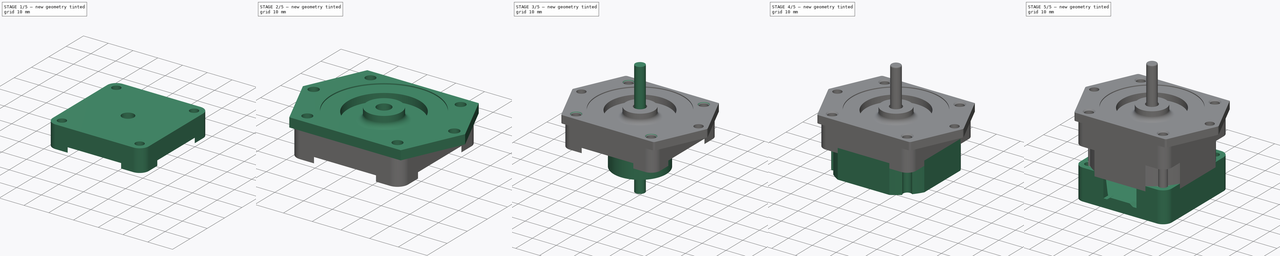
[diagram: build sequence overview — one tinted view per stage of 5, left to right]
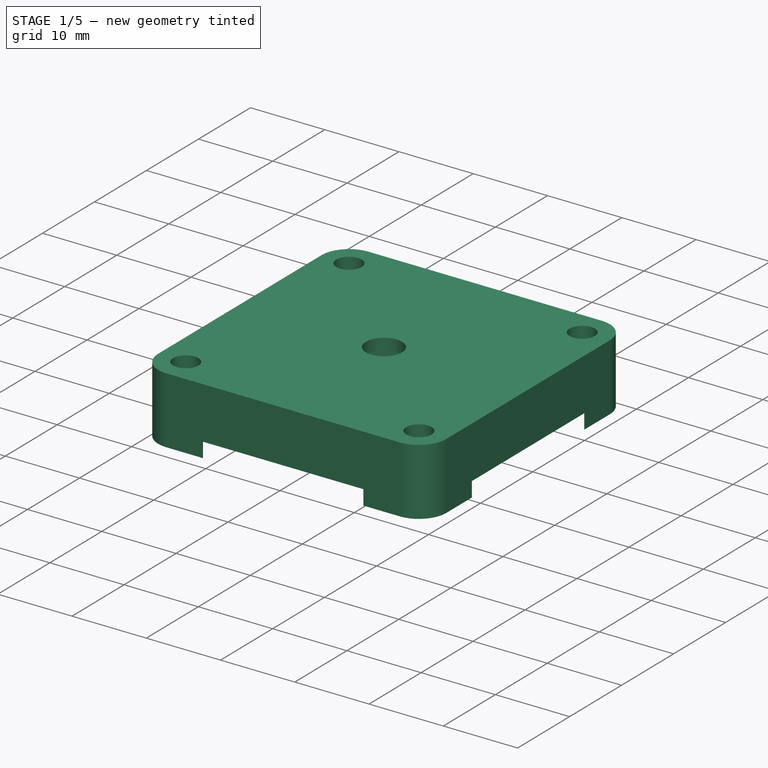
[diagram: stage 1 of 5 — iso view after this stage's code; geometry added in this stage tinted green]
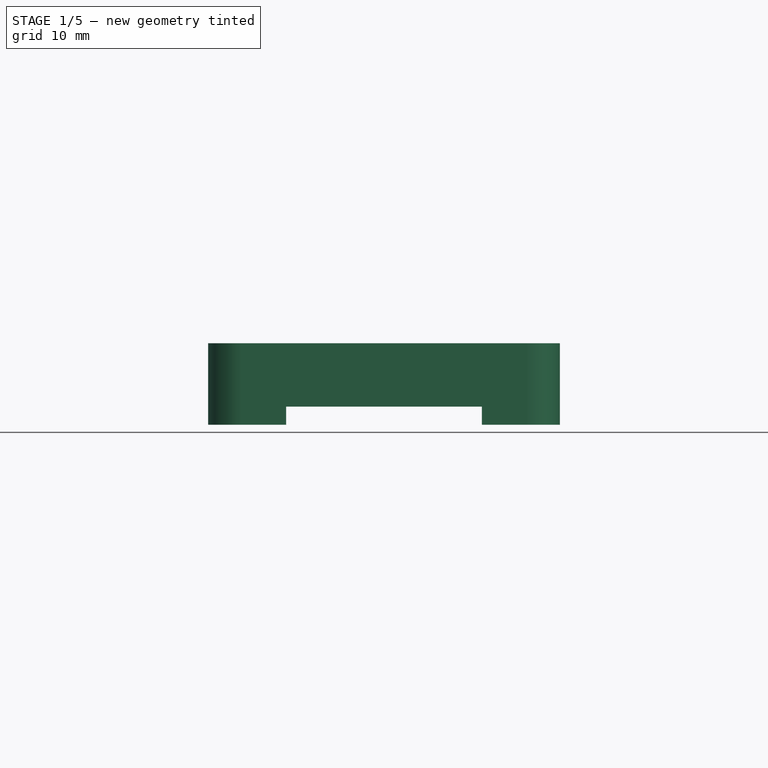
[diagram: stage 1 of 5 — front view after this stage's code; geometry added in this stage tinted green]
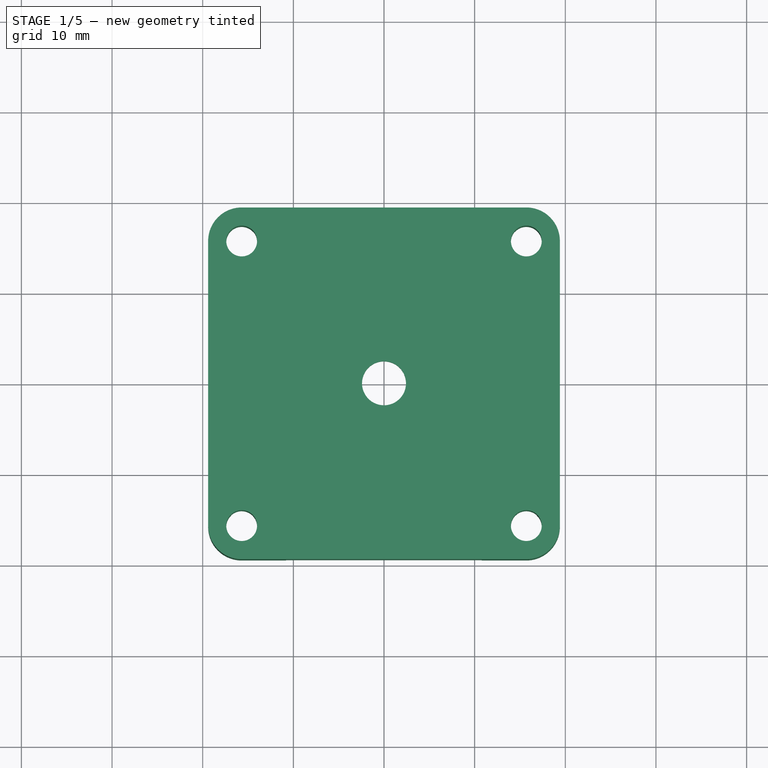
[diagram: stage 1 of 5 — top view after this stage's code; geometry added in this stage tinted green]
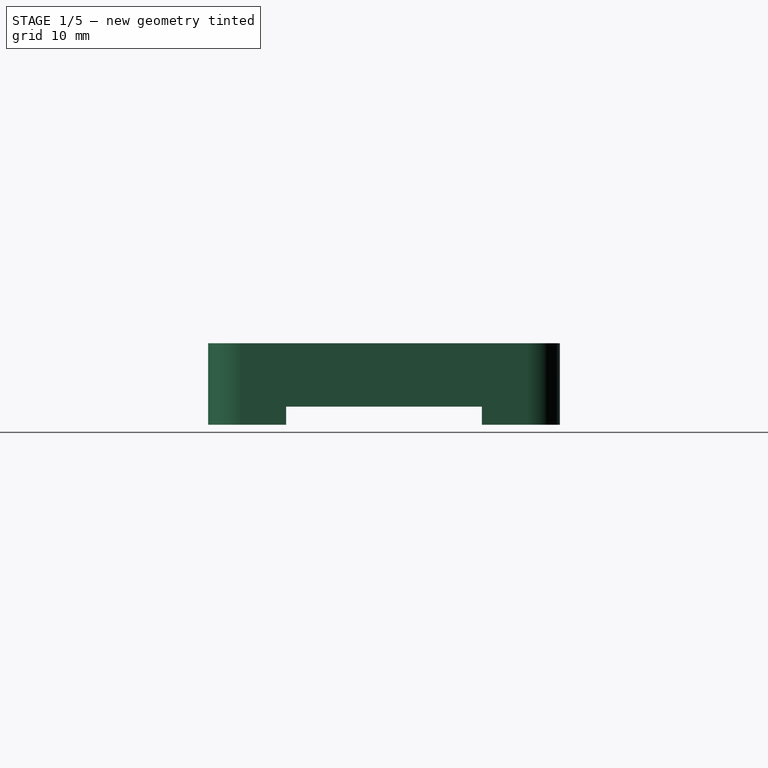
[diagram: stage 1 of 5 — right view after this stage's code; geometry added in this stage tinted green]
FCSTD DOCUMENT  (FreeCAD 2022.111R30764 (Git))
Label: EM-286
License: Creative Commons Attribution
LicenseURL: http://creativecommons.org/licenses/by/4.0/
objects: Sketcher::SketchObject×22, PartDesign::Pad×12, PartDesign::Body×9, PartDesign::Pocket×7, Part::SubShapeBinder×6, App::DocumentObjectGroup×3, PartDesign::Fillet×3, PartDesign::Revolution×3, PartDesign::Chamfer×2, PartDesign::PolarPattern×1, App::Part×1
note: 121 computed .brp shape members not serialized (recipe doc carries the construction recipe); baked Part::Feature solids carry a one-line shape summary decoded from their .brp

FEATURE [Part::SubShapeBinder] Import001  label="Import001(Pocket002)"
  BindCopyOnChange = 0
  BindMode = 0
  ClaimChildren = false
  Context = -> Part [Body003.Import001.]
  FillStyle = 0
  Fuse = false
  MakeFace = false
  PartialLoad = false
  Relative = true
  Support = -> [Body[Pocket002.]]
  TreeRank = 70
  _Version = 8
FEATURE [Sketcher::SketchObject] Sketch007
  AttachmentOffset = pos=(0,0,21) rot=(0,0,1;0rad)
  ExternalGeometry = -> [Import001]
  FullyConstrained = true
  MapMode = 5
  Placement = pos=(0,0,21) rot=(0,0,1;0rad)
  Support = -> [XY_Plane003]
  TreeRank = 69
  sketch-geometry (15):
    g0: ArcOfCircle CenterX=-15.7 CenterY=15.7 CenterZ=0 NormalX=0 NormalY=0 NormalZ=1 AngleXU=0 Radius=3.7 StartAngle=1.5708 EndAngle=3.14159
    g1: LineSegment StartX=-15.7 StartY=19.4 StartZ=0 EndX=15.7 EndY=19.4 EndZ=0
    g2: ArcOfCircle CenterX=15.7 CenterY=15.7 CenterZ=0 NormalX=0 NormalY=0 NormalZ=1 AngleXU=0 Radius=3.7 StartAngle=2e-16 EndAngle=1.5708
    g3: LineSegment StartX=19.4 StartY=15.7 StartZ=0 EndX=19.4 EndY=-15.7 EndZ=0
    g4: ArcOfCircle CenterX=15.7 CenterY=-15.7 CenterZ=0 NormalX=0 NormalY=0 NormalZ=1 AngleXU=0 Radius=3.7 StartAngle=4.71239 EndAngle=6.28319
    g5: LineSegment StartX=15.7 StartY=-19.4 StartZ=0 EndX=-15.7 EndY=-19.4 EndZ=0
    g6: ArcOfCircle CenterX=-15.7 CenterY=-15.7 CenterZ=0 NormalX=0 NormalY=0 NormalZ=1 AngleXU=0 Radius=3.7 StartAngle=3.14159 EndAngle=4.71239
    g7: LineSegment StartX=-19.4 StartY=-15.7 StartZ=0 EndX=-19.4 EndY=15.7 EndZ=0
    g8: GeomPoint [constr] X=-19.4 Y=19.4 Z=0
    g9: GeomPoint [constr] X=19.4 Y=-19.4 Z=0
    g10: Circle CenterX=-15.7 CenterY=15.7 CenterZ=0 NormalX=0 NormalY=0 NormalZ=1 AngleXU=0 Radius=1.7
    g11: Circle CenterX=15.7 CenterY=15.7 CenterZ=0 NormalX=0 NormalY=0 NormalZ=1 AngleXU=0 Radius=1.7
    g12: Circle CenterX=15.7 CenterY=-15.7 CenterZ=0 NormalX=0 NormalY=0 NormalZ=1 AngleXU=0 Radius=1.7
    g13: Circle CenterX=-15.7 CenterY=-15.7 CenterZ=0 NormalX=0 NormalY=0 NormalZ=1 AngleXU=0 Radius=1.7
    g14: Circle CenterX=0 CenterY=0 CenterZ=0 NormalX=0 NormalY=0 NormalZ=1 AngleXU=0 Radius=2.425
  constraints (32):
    c: Tangent(g0,g1) = 1.5708
    c: Tangent(g1,g2) = 1.5708
    c: Tangent(g2,g3) = 1.5708
    c: Tangent(g3,g4) = 1.5708
    c: Tangent(g4,g5) = 1.5708
    c: Tangent(g5,g6) = 1.5708
    c: Tangent(g6,g7) = 1.5708
    c: Tangent(g7,g0) = 1.5708
    c: Horizontal(g1)
    c: Horizontal(g5)
    c: Vertical(g3)
    c: Vertical(g7)
    c: Equal(g0,g2)
    c: Equal(g2,g4)
    c: Equal(g4,g6)
    c: PointOnObject(g8,g1)
    c: PointOnObject(g8,g7)
    c: PointOnObject(g9,g3)
    c: PointOnObject(g9,g5)
    c: Equal(g2,g-3)
    c: Coincident(g2,g-3)
    c: Coincident(g6,g-4)
    c: Coincident(g10,g0)
    c: Coincident(g11,g2)
    c: Coincident(g12,g4)
    c: Coincident(g13,g6)
    c: Coincident(g14,g-1)
    c: Diameter(g14) = 4.85
    c: Diameter(g11) = 3.4
    c: Equal(g11,g10)
    c: Equal(g10,g13)
    c: Equal(g13,g12)
FEATURE [PartDesign::Pad] Pad004
  AddSubType = 0
  AlongSketchNormal = false
  CheckUpToFaceLimits = true
  ClaimChildren = false
  Direction = (0,0,1)
  Fit = 0
  FitJoin = 0
  InnerFit = 0
  InnerFitJoin = 0
  InnerTaperAngle = 0
  InnerTaperAngleRev = 0
  Length = 9
  Length2 = 100
  Linearize = true
  NewSolid = false
  Profile = -> Sketch007
  Suppress = false
  TreeRank = 71
  Type = 0
  _ProfileBasedVersion = 1
FEATURE [Sketcher::SketchObject] Sketch008
  ExternalGeometry = -> [Pad004]
  FullyConstrained = true
  MapMode = 5
  Placement = pos=(0,0,21) rot=(1,0,0;3.14159rad)
  Support = -> [Pad004]
  TreeRank = 72
  sketch-geometry (1):
    g0: Circle CenterX=0 CenterY=0 CenterZ=0 NormalX=0 NormalY=0 NormalZ=1 AngleXU=0 Radius=22.2032
  constraints (2):
    c: Coincident(g0,g-1)
    c: PointOnObject(g-3,g0)
FEATURE [PartDesign::Pocket] Pocket003
  AddSubType = 1
  BaseFeature = -> Pad004
  CheckUpToFaceLimits = true
  ClaimChildren = false
  Fit = 0
  FitJoin = 0
  InnerFit = 0
  InnerFitJoin = 0
  InnerTaperAngle = 0
  InnerTaperAngleRev = 0
  Length = 2
  Length2 = 100
  Linearize = true
  NewSolid = false
  Profile = -> Sketch008
  Suppress = false
  TreeRank = 73
  Type = 0
  _ProfileBasedVersion = 1
  _Version = 1
FEATURE [Sketcher::SketchObject] Sketch009
  FullyConstrained = true
  MapMode = 5
  Placement = pos=(0,0,23) rot=(1,0,0;3.14159rad)
  Support = -> [Pocket003]
  TreeRank = 74
  sketch-geometry (9):
    g0: LineSegment StartX=18 StartY=-7.45584 StartZ=0 EndX=18 EndY=7.45584 EndZ=0
    g1: LineSegment StartX=18 StartY=7.45584 StartZ=0 EndX=7.45584 EndY=18 EndZ=0
    g2: LineSegment StartX=7.45584 StartY=18 StartZ=0 EndX=-7.45584 EndY=18 EndZ=0
    g3: LineSegment StartX=-7.45584 StartY=18 StartZ=0 EndX=-18 EndY=7.45584 EndZ=0
    g4: LineSegment StartX=-18 StartY=7.45584 StartZ=0 EndX=-18 EndY=-7.45584 EndZ=0
    g5: LineSegment StartX=-18 StartY=-7.45584 StartZ=0 EndX=-7.45584 EndY=-18 EndZ=0
    g6: LineSegment StartX=-7.45584 StartY=-18 StartZ=0 EndX=7.45584 EndY=-18 EndZ=0
    g7: LineSegment StartX=7.45584 StartY=-18 StartZ=0 EndX=18 EndY=-7.45584 EndZ=0
    g8: Circle [constr] CenterX=0 CenterY=0 CenterZ=0 NormalX=0 NormalY=0 NormalZ=1 AngleXU=0 Radius=19.4831
  constraints (20):
    c: Coincident(g0,g1)
    c: Coincident(g1,g2)
    c: Coincident(g2,g3)
    c: Coincident(g3,g4)
    c: Coincident(g4,g5)
    c: Coincident(g5,g6)
    c: Coincident(g6,g7)
    c: Coincident(g7,g0)
    c: Equal(g0, g1-g7) x7
    c: PointOnObject(g0,g8)
    c: PointOnObject(g1,g8)
    c: PointOnObject(g2,g8)
    c: PointOnObject(g3,g8)
    c: PointOnObject(g4,g8)
    c: PointOnObject(g5,g8)
    c: PointOnObject(g6,g8)
    c: PointOnObject(g7,g8)
    c: Coincident(g8,g-1)
    c: Horizontal(g2)
    c: DistanceX(g3,g0) = 36
FEATURE [PartDesign::Pocket] Pocket004
  AddSubType = 1
  BaseFeature = -> Pocket003
  CheckUpToFaceLimits = true
  ClaimChildren = false
  Fit = 0
  FitJoin = 0
  InnerFit = 0
  InnerFitJoin = 0
  InnerTaperAngle = 0
  InnerTaperAngleRev = 0
  Length = 5.5
  Length2 = 100
  Linearize = true
  NewSolid = false
  Profile = -> Sketch009
  Suppress = false
  TaperAngle = -10
  TreeRank = 75
  Type = 0
  _ProfileBasedVersion = 1
  _Version = 1
FEATURE [Sketcher::SketchObject] Sketch010
  FullyConstrained = true
  MapMode = 5
  Placement = pos=(0,0,28.5) rot=(1,0,0;3.14159rad)
  Support = -> [Pocket004]
  TreeRank = 76
  sketch-geometry (2):
    g0: Circle CenterX=0 CenterY=0 CenterZ=0 NormalX=0 NormalY=0 NormalZ=1 AngleXU=0 Radius=10.875
    g1: Circle CenterX=0 CenterY=0 CenterZ=0 NormalX=0 NormalY=0 NormalZ=1 AngleXU=0 Radius=4
  constraints (4):
    c: Coincident(g0,g-1)
    c: Coincident(g1,g0)
    c: Diameter(g1) = 8
    c: Diameter(g0) = 21.75
FEATURE [PartDesign::Pad] Pad005
  AddSubType = 0
  AlongSketchNormal = false
  BaseFeature = -> Pocket004
  CheckUpToFaceLimits = true
  ClaimChildren = false
  Direction = (0,0,-1)
  Fit = 0
  FitJoin = 0
  InnerFit = 0
  InnerFitJoin = 0
  InnerTaperAngle = 0
  InnerTaperAngleRev = 0
  Length = 1
  Length2 = 100
  Linearize = true
  NewSolid = false
  Profile = -> Sketch010
  Suppress = false
  TreeRank = 77
  Type = 0
  _ProfileBasedVersion = 1
FEATURE [App::DocumentObjectGroup] Group  label="Bottom"
  ExportMode = 1
  Group = -> [Body,Body001]
  TreeRank = 78
  _GroupVersion = 1
FEATURE [PartDesign::Chamfer] Chamfer
  AddSubType = 0
  Angle = 60
  Base = -> Pad005 [Edge117]
  BaseFeature = -> Pad005
  ChamferType = 2
  FlipDirection = false
  NewSolid = false
  Size = 0.5
  Size2 = 1
  SupportTransform = false
  Suppress = false
  TreeRank = 80
FEATURE [Sketcher::SketchObject] Sketch011
  FullyConstrained = true
  MapMode = 5
  Placement = pos=(0,0,27.5) rot=(1,0,0;3.14159rad)
  Support = -> [Chamfer]
  TreeRank = 81
  sketch-geometry (2):
    g0: Circle CenterX=0 CenterY=0 CenterZ=0 NormalX=0 NormalY=0 NormalZ=1 AngleXU=0 Radius=4
    g1: Circle CenterX=0 CenterY=0 CenterZ=0 NormalX=0 NormalY=0 NormalZ=1 AngleXU=0 Radius=6.25
  constraints (4):
    c: Coincident(g0,g-1)
    c: Coincident(g1,g0)
    c: Diameter(g0) = 8
    c: Diameter(g1) = 12.5
FEATURE [PartDesign::Pad] Pad006
  AddSubType = 0
  AlongSketchNormal = false
  BaseFeature = -> Chamfer
  CheckUpToFaceLimits = true
  ClaimChildren = false
  Direction = (0,0,-1)
  Fit = 0
  FitJoin = 0
  InnerFit = 0
  InnerFitJoin = 0
  InnerTaperAngle = 0
  InnerTaperAngleRev = 0
  Length = 2
  Length2 = 100
  Linearize = true
  NewSolid = false
  Profile = -> Sketch011
  Suppress = false
  TreeRank = 82
  Type = 0
  _ProfileBasedVersion = 1
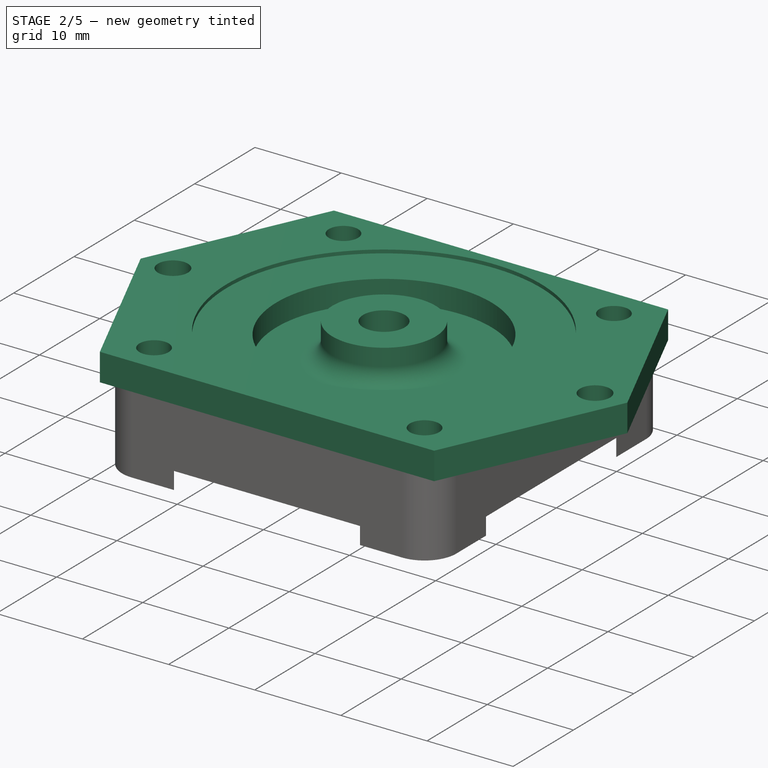
[diagram: stage 2 of 5 — iso view after this stage's code; geometry added in this stage tinted green]
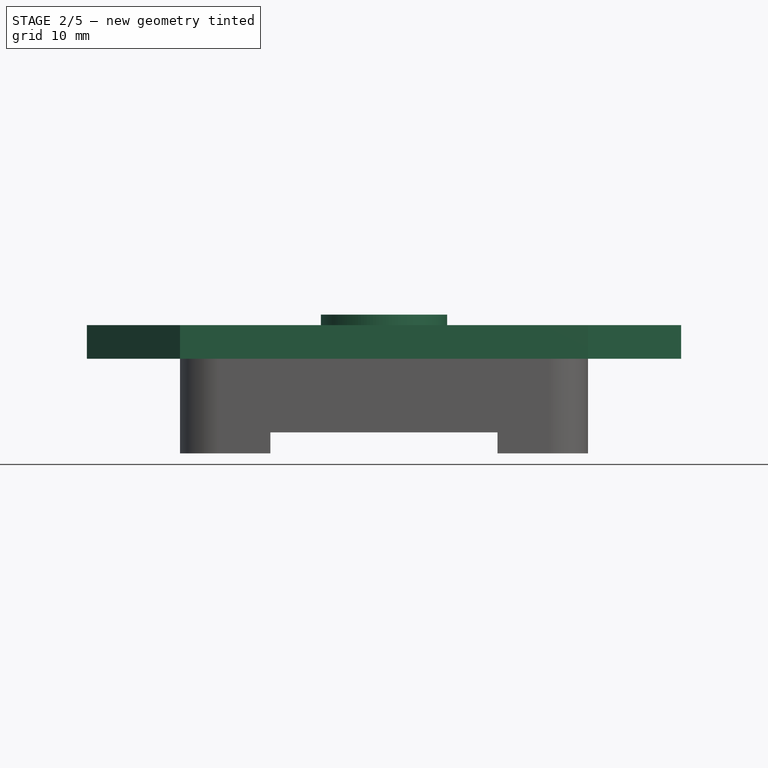
[diagram: stage 2 of 5 — front view after this stage's code; geometry added in this stage tinted green]
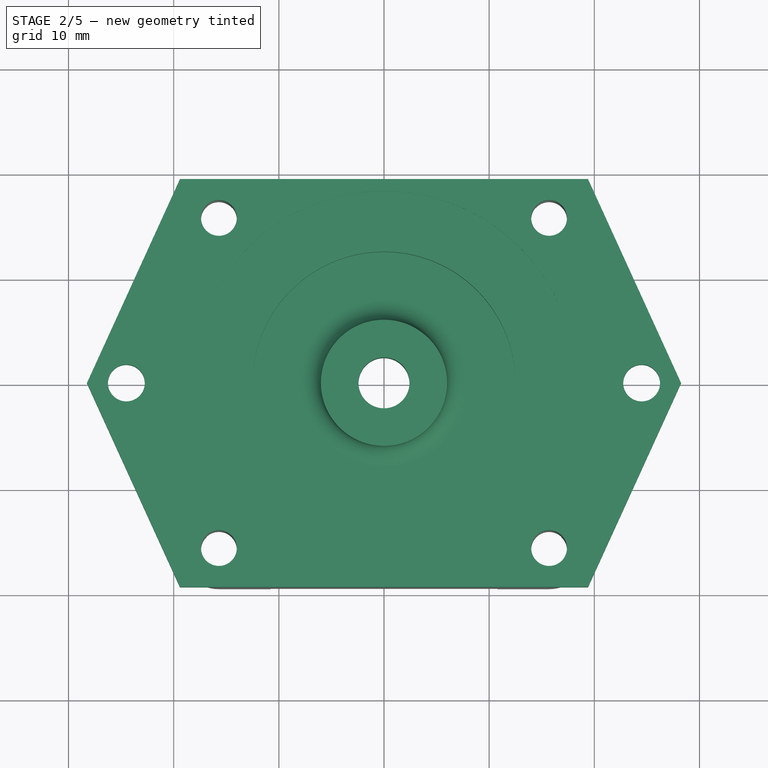
[diagram: stage 2 of 5 — top view after this stage's code; geometry added in this stage tinted green]
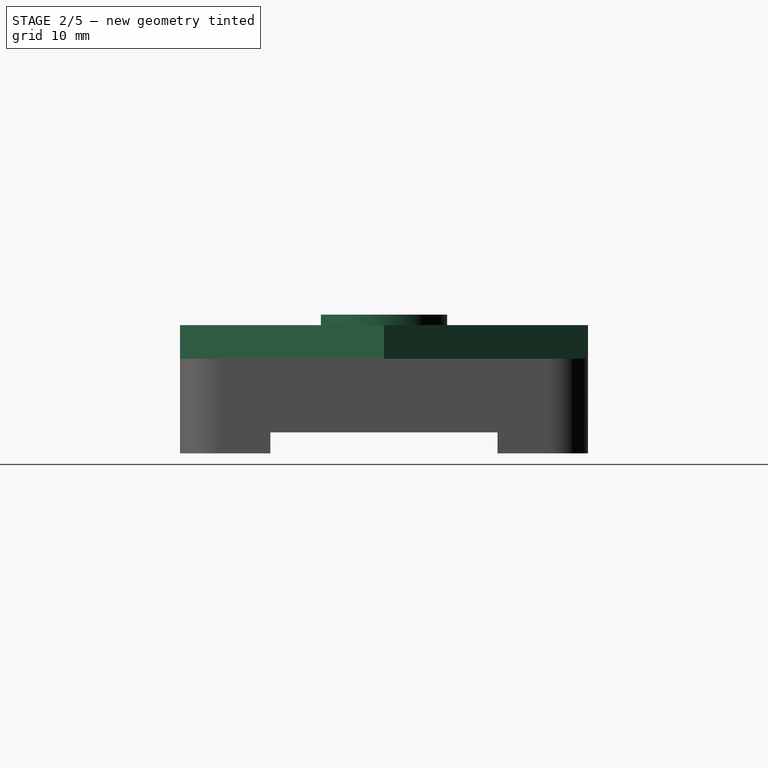
[diagram: stage 2 of 5 — right view after this stage's code; geometry added in this stage tinted green]
FEATURE [PartDesign::Body] Body002  label="Middle"
  AutoGroupSolids = false
  ExportMode = 0
  Group = -> [Sketch006,Import,Pad003,Sketch013,Pad008,PolarPattern]
  Origin = -> Origin003
  Tip = -> PolarPattern
  TreeRank = 53
  _ExportChildren = -> [Import,Pad003,Pad008,PolarPattern]
  _GroupVersion = 1
FEATURE [Sketcher::SketchObject] Sketch014
  ExternalGeometry = -> [Pad006]
  FullyConstrained = true
  MapMode = 5
  Placement = pos=(0,0,30) rot=(0,0,1;0rad)
  Support = -> [Pad006]
  TreeRank = 101
  sketch-geometry (13):
    g0: LineSegment StartX=-19.4 StartY=-19.4 StartZ=0 EndX=19.4 EndY=-19.4 EndZ=0
    g1: LineSegment StartX=19.4 StartY=-19.4 StartZ=0 EndX=28.25 EndY=0 EndZ=0
    g2: LineSegment StartX=28.25 StartY=0 StartZ=0 EndX=19.4 EndY=19.4 EndZ=0
    g3: LineSegment StartX=19.4 StartY=19.4 StartZ=0 EndX=-19.4 EndY=19.4 EndZ=0
    g4: LineSegment StartX=-19.4 StartY=19.4 StartZ=0 EndX=-28.25 EndY=0 EndZ=0
    g5: LineSegment StartX=-28.25 StartY=0 StartZ=0 EndX=-19.4 EndY=-19.4 EndZ=0
    g6: Circle CenterX=0 CenterY=0 CenterZ=0 NormalX=0 NormalY=0 NormalZ=1 AngleXU=0 Radius=2.425
    g7: Circle CenterX=-24.5 CenterY=0 CenterZ=0 NormalX=0 NormalY=0 NormalZ=1 AngleXU=0 Radius=1.75
    g8: Circle CenterX=24.5 CenterY=0 CenterZ=0 NormalX=0 NormalY=0 NormalZ=1 AngleXU=0 Radius=1.75
    g9: Circle CenterX=-15.7 CenterY=15.7 CenterZ=0 NormalX=0 NormalY=0 NormalZ=1 AngleXU=0 Radius=1.7
    g10: Circle CenterX=-15.7 CenterY=-15.7 CenterZ=0 NormalX=0 NormalY=0 NormalZ=1 AngleXU=0 Radius=1.7
    g11: Circle CenterX=15.7 CenterY=-15.7 CenterZ=0 NormalX=0 NormalY=0 NormalZ=1 AngleXU=0 Radius=1.7
    g12: Circle CenterX=15.7 CenterY=15.7 CenterZ=0 NormalX=0 NormalY=0 NormalZ=1 AngleXU=0 Radius=1.7
  constraints (33):
    c: Horizontal(g0)
    c: Coincident(g0,g1)
    c: PointOnObject(g1,g-1)
    c: Coincident(g1,g2)
    c: PointOnObject(g2,g-4)
    c: Coincident(g2,g3)
    c: Horizontal(g3)
    c: Coincident(g3,g4)
    c: PointOnObject(g4,g-1)
    c: Coincident(g4,g5)
    c: Coincident(g5,g0)
    c: Equal(g4,g5)
    c: Equal(g5,g2)
    c: Equal(g2,g1)
    c: Symmetric(g2,g0,g-1)
    c: DistanceX(g4,g1) = 56.5
    c: Vertical(g2,g-5)
    c: Coincident(g6,g-1)
    c: PointOnObject(g7,g-1)
    c: PointOnObject(g8,g-1)
    c: Equal(g8,g7)
    c: Diameter(g8) = 3.5
    c: DistanceX(g8,g1) = 3.75
    c: DistanceX(g4,g7) = 3.75
    c: Diameter(g6) = 4.85
    c: Coincident(g9,g-7)
    c: Coincident(g10,g-9)
    c: Coincident(g11,g-10)
    c: Coincident(g12,g-8)
    c: Equal(g-7,g12)
    c: Equal(g12,g11)
    c: Equal(g11,g10)
    c: Equal(g9,g12)
FEATURE [PartDesign::Pad] Pad009
  AddSubType = 0
  AlongSketchNormal = false
  BaseFeature = -> Pad006
  CheckUpToFaceLimits = true
  ClaimChildren = false
  Direction = (0,0,1)
  Fit = 0
  FitJoin = 0
  InnerFit = 0
  InnerFitJoin = 0
  InnerTaperAngle = 0
  InnerTaperAngleRev = 0
  Length = 3.2
  Length2 = 100
  Linearize = true
  NewSolid = false
  Profile = -> Sketch014
  Suppress = false
  TreeRank = 102
  Type = 0
  _ProfileBasedVersion = 1
FEATURE [Sketcher::SketchObject] Sketch015
  FullyConstrained = true
  MapMode = 5
  Placement = pos=(0,0,33.2) rot=(0,0,1;0rad)
  Support = -> [Pad009]
  TreeRank = 103
  sketch-geometry (1):
    g0: Circle CenterX=0 CenterY=0 CenterZ=0 NormalX=0 NormalY=0 NormalZ=1 AngleXU=0 Radius=18.25
  constraints (2):
    c: Coincident(g0,g-1)
    c: Diameter(g0) = 36.5
FEATURE [PartDesign::Pocket] Pocket005
  AddSubType = 1
  BaseFeature = -> Pad009
  CheckUpToFaceLimits = true
  ClaimChildren = false
  Fit = 0
  FitJoin = 0
  InnerFit = 0
  InnerFitJoin = 0
  InnerTaperAngle = 0
  InnerTaperAngleRev = 0
  Length = 0.4
  Length2 = 100
  Linearize = true
  NewSolid = false
  Profile = -> Sketch015
  Suppress = false
  TreeRank = 104
  Type = 0
  _ProfileBasedVersion = 1
  _Version = 1
FEATURE [Sketcher::SketchObject] Sketch016
  FullyConstrained = true
  MapMode = 5
  Placement = pos=(0,0,32.8) rot=(0,0,1;0rad)
  Support = -> [Pocket005]
  TreeRank = 105
  sketch-geometry (1):
    g0: Circle CenterX=0 CenterY=0 CenterZ=0 NormalX=0 NormalY=0 NormalZ=1 AngleXU=0 Radius=12.5
  constraints (2):
    c: Coincident(g0,g-1)
    c: Diameter(g0) = 25
FEATURE [PartDesign::Pocket] Pocket006
  AddSubType = 1
  BaseFeature = -> Pocket005
  CheckUpToFaceLimits = true
  ClaimChildren = false
  Fit = 0
  FitJoin = 0
  InnerFit = 0
  InnerFitJoin = 0
  InnerTaperAngle = 0
  InnerTaperAngleRev = 0
  Length = 2.6
  Length2 = 100
  Linearize = true
  NewSolid = false
  Profile = -> Sketch016
  Suppress = false
  TreeRank = 106
  Type = 0
  _ProfileBasedVersion = 1
  _Version = 1
FEATURE [Sketcher::SketchObject] Sketch017
  ExternalGeometry = -> [Pocket006]
  FullyConstrained = true
  MapMode = 5
  Placement = pos=(0,0,30.2) rot=(0,0,1;0rad)
  Support = -> [Pocket006]
  TreeRank = 107
  sketch-geometry (2):
    g0: Circle CenterX=0 CenterY=0 CenterZ=0 NormalX=0 NormalY=0 NormalZ=1 AngleXU=0 Radius=6
    g1: Circle CenterX=0 CenterY=0 CenterZ=0 NormalX=0 NormalY=0 NormalZ=1 AngleXU=0 Radius=2.425
  constraints (4):
    c: Coincident(g0,g-1)
    c: Coincident(g1,g0)
    c: Equal(g1,g-3)
    c: Diameter(g0) = 12
FEATURE [PartDesign::Pad] Pad010
  AddSubType = 0
  AlongSketchNormal = false
  BaseFeature = -> Pocket006
  CheckUpToFaceLimits = true
  ClaimChildren = false
  Direction = (0,0,1)
  Fit = 0
  FitJoin = 0
  InnerFit = 0
  InnerFitJoin = 0
  InnerTaperAngle = 0
  InnerTaperAngleRev = 0
  Length = 4
  Length2 = 100
  Linearize = true
  NewSolid = false
  Profile = -> Sketch017
  Suppress = false
  TreeRank = 108
  Type = 0
  _ProfileBasedVersion = 1
FEATURE [PartDesign::Body] Body008  label="Seals"
  AutoGroupSolids = false
  ExportMode = 0
  Group = -> [Sketch021,Import005,Revolution002]
  Origin = -> Origin009
  Tip = -> Revolution002
  TreeRank = 166
  _ExportChildren = -> [Import005,Revolution002]
  _GroupVersion = 1
FEATURE [App::DocumentObjectGroup] Group002  label="Axis"
  ExportMode = 1
  Group = -> [Body005,Body006,Body007,Body008]
  TreeRank = 109
  _GroupVersion = 1
FEATURE [PartDesign::Fillet] Fillet001
  AddSubType = 0
  Base = -> Pad010 [Edge169]
  BaseFeature = -> Pad010
  NewSolid = false
  Radius = 2
  SupportTransform = false
  Suppress = false
  TreeRank = 170
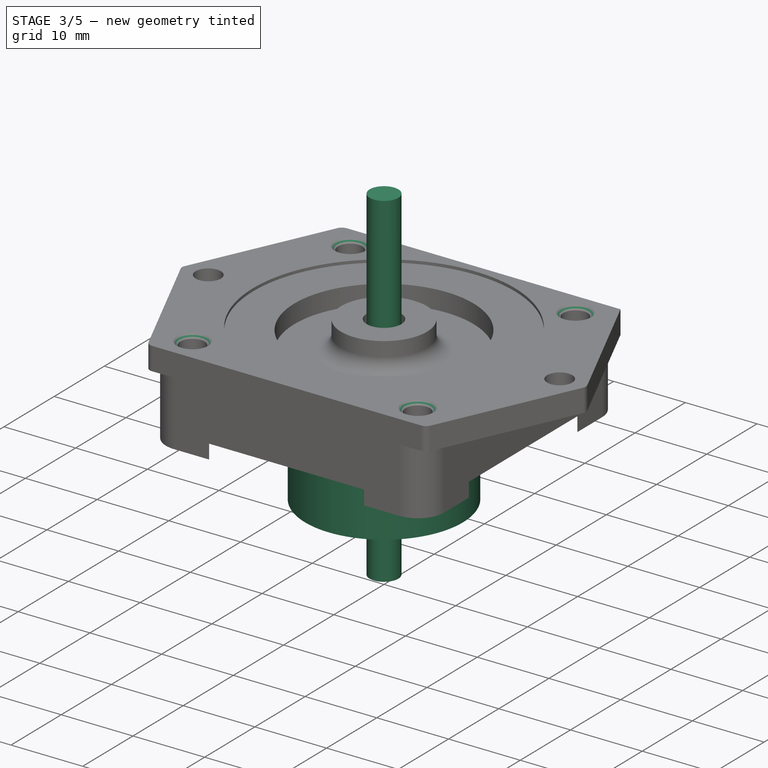
[diagram: stage 3 of 5 — iso view after this stage's code; geometry added in this stage tinted green]
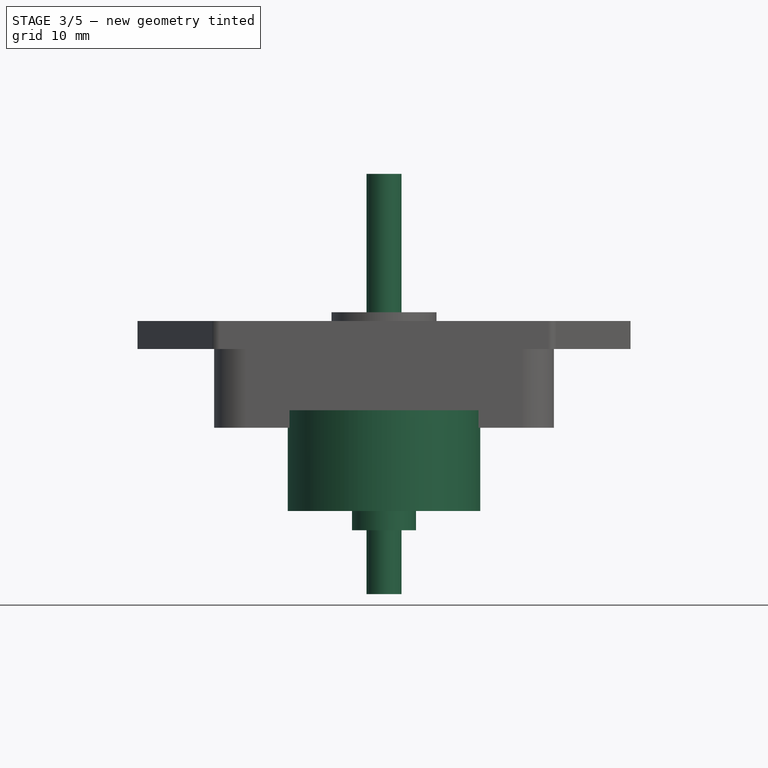
[diagram: stage 3 of 5 — front view after this stage's code; geometry added in this stage tinted green]
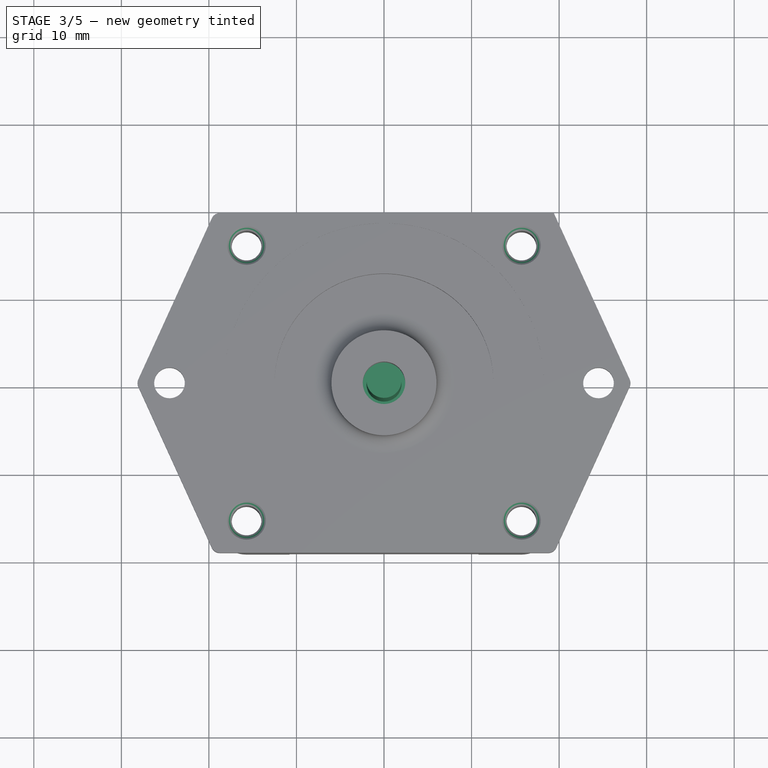
[diagram: stage 3 of 5 — top view after this stage's code; geometry added in this stage tinted green]
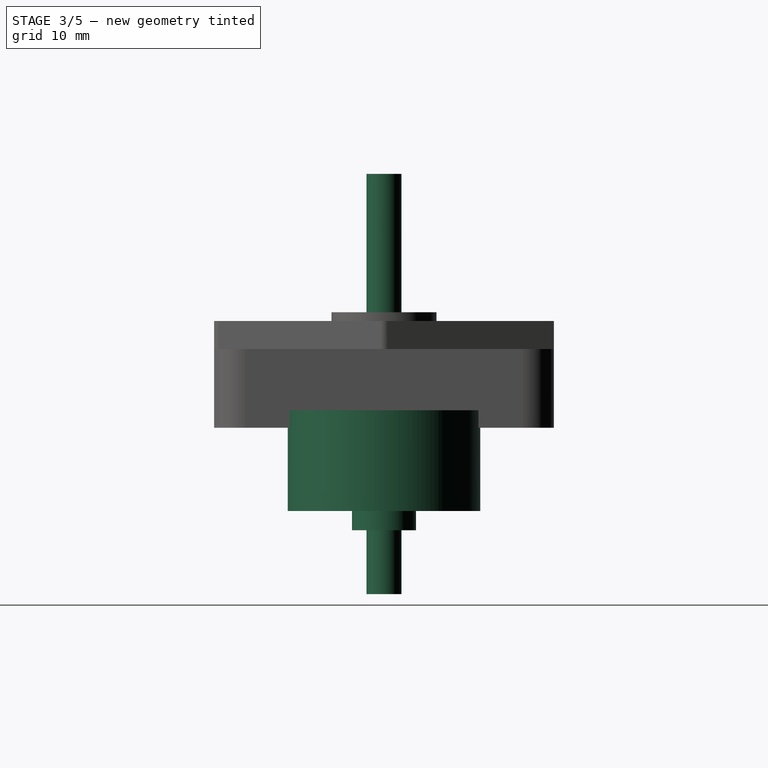
[diagram: stage 3 of 5 — right view after this stage's code; geometry added in this stage tinted green]
FEATURE [Sketcher::SketchObject] Sketch018
  AttachmentOffset = pos=(0,0,2) rot=(0,0,1;0rad)
  FullyConstrained = true
  MapMode = 5
  Placement = pos=(0,0,2) rot=(0,0,1;0rad)
  Support = -> [XY_Plane005]
  TreeRank = 122
  sketch-geometry (1):
    g0: Circle CenterX=0 CenterY=0 CenterZ=0 NormalX=0 NormalY=0 NormalZ=1 AngleXU=0 Radius=2
  constraints (2):
    c: Coincident(g0,g-1)
    c: Diameter(g0) = 4
FEATURE [PartDesign::Pad] Pad011
  AddSubType = 0
  AlongSketchNormal = false
  CheckUpToFaceLimits = true
  ClaimChildren = false
  Direction = (0,0,1)
  Fit = 0
  FitJoin = 0
  InnerFit = 0
  InnerFitJoin = 0
  InnerTaperAngle = 0
  InnerTaperAngleRev = 0
  Length = 48
  Length2 = 100
  Linearize = true
  NewSolid = false
  Profile = -> Sketch018
  Suppress = false
  TreeRank = 123
  Type = 0
  _ProfileBasedVersion = 1
FEATURE [PartDesign::Body] Body005  label="Axis001"
  AutoGroupSolids = false
  ExportMode = 0
  Group = -> [Sketch018,Pad011,Fillet]
  Origin = -> Origin006
  Tip = -> Fillet
  TreeRank = 121
  _ExportChildren = -> [Pad011,Fillet]
  _GroupVersion = 1
FEATURE [Part::SubShapeBinder] Import003  label="Import003(Fillet)"
  BindCopyOnChange = 0
  BindMode = 0
  ClaimChildren = false
  Context = -> Body006 [Import003.]
  FillStyle = 0
  Fuse = false
  MakeFace = false
  PartialLoad = false
  Relative = true
  Support = -> [Body005[Fillet.]]
  TreeRank = 138
  _Version = 8
FEATURE [Sketcher::SketchObject] Sketch019
  ExternalGeometry = -> [Import003]
  FullyConstrained = true
  MapMode = 5
  Placement = pos=(0,0,0) rot=(1,0,0;1.5708rad)
  Support = -> [XZ_Plane006]
  TreeRank = 137
  sketch-geometry (4):
    g0: LineSegment StartX=-3.65 StartY=11.5 StartZ=0 EndX=-11 EndY=11.5 EndZ=0
    g1: LineSegment StartX=-11 StartY=11.5 StartZ=0 EndX=-11 EndY=23.5 EndZ=0
    g2: LineSegment StartX=-11 StartY=23.5 StartZ=0 EndX=-3.65 EndY=23.5 EndZ=0
    g3: LineSegment StartX=-3.65 StartY=23.5 StartZ=0 EndX=-3.65 EndY=11.5 EndZ=0
  constraints (12):
    c: Coincident(g0,g1)
    c: Coincident(g1,g2)
    c: Coincident(g2,g3)
    c: Coincident(g3,g0)
    c: Horizontal(g0)
    c: Horizontal(g2)
    c: Vertical(g1)
    c: Vertical(g3)
    c: DistanceY(g1,g1) = 12
    c: DistanceX(g2) = -3.65
    c: DistanceY(g-3,g0) = 9.5
    c: DistanceX(g2,g2) = 7.35
FEATURE [PartDesign::Revolution] Revolution
  AddSubType = 0
  Angle = 360
  Axis = (0,2e-16,1)
  Base = (0,0,0)
  ClaimChildren = false
  Fit = 0
  FitJoin = 0
  InnerFit = 0
  InnerFitJoin = 0
  Linearize = true
  NewSolid = false
  Placement = pos=(0,0,0) rot=(1,0,0;1.5708rad)
  Profile = -> Sketch019
  ReferenceAxis = -> Sketch019 [V_Axis]
  Suppress = false
  TreeRank = 139
  _ProfileBasedVersion = 1
FEATURE [PartDesign::Body] Body006  label="Magnet"
  AutoGroupSolids = false
  ExportMode = 0
  Group = -> [Sketch019,Import003,Revolution]
  Origin = -> Origin007
  Tip = -> Revolution
  TreeRank = 136
  _ExportChildren = -> [Import003,Revolution]
  _GroupVersion = 1
FEATURE [Part::SubShapeBinder] Import004  label="Import004(Fillet)"
  BindCopyOnChange = 0
  BindMode = 0
  ClaimChildren = false
  Context = -> Body007 [Import004.]
  FillStyle = 0
  Fuse = false
  MakeFace = false
  PartialLoad = false
  Relative = true
  Support = -> [Body005[Fillet.]]
  TreeRank = 153
  _Version = 8
FEATURE [Sketcher::SketchObject] Sketch020
  ExternalGeometry = -> [Import004]
  FullyConstrained = true
  MapMode = 5
  Placement = pos=(0,0,0) rot=(1,0,0;1.5708rad)
  Support = -> [XZ_Plane007]
  TreeRank = 152
  sketch-geometry (4):
    g0: LineSegment StartX=-3.65 StartY=25.1 StartZ=0 EndX=-2 EndY=25.1 EndZ=0
    g1: LineSegment StartX=-2 StartY=25.1 StartZ=0 EndX=-2 EndY=9.8 EndZ=0
    g2: LineSegment StartX=-2 StartY=9.8 StartZ=0 EndX=-3.65 EndY=9.8 EndZ=0
    g3: LineSegment StartX=-3.65 StartY=9.8 StartZ=0 EndX=-3.65 EndY=25.1 EndZ=0
  constraints (12):
    c: Coincident(g0,g1)
    c: Coincident(g1,g2)
    c: Coincident(g2,g3)
    c: Coincident(g3,g0)
    c: Horizontal(g0)
    c: Horizontal(g2)
    c: Vertical(g1)
    c: Vertical(g3)
    c: DistanceX(g0) = -2
    c: DistanceX(g0,g0) = 1.65
    c: DistanceY(g3,g3) = 15.3
    c: DistanceY(g-3,g1) = 7.8
FEATURE [PartDesign::Revolution] Revolution001
  AddSubType = 0
  Angle = 360
  Axis = (0,2e-16,1)
  Base = (0,0,0)
  ClaimChildren = false
  Fit = 0
  FitJoin = 0
  InnerFit = 0
  InnerFitJoin = 0
  Linearize = true
  NewSolid = false
  Placement = pos=(0,0,0) rot=(1,0,0;1.5708rad)
  Profile = -> Sketch020
  ReferenceAxis = -> Sketch020 [V_Axis]
  Suppress = false
  TreeRank = 154
  _ProfileBasedVersion = 1
FEATURE [PartDesign::Body] Body007  label="Plastic"
  AutoGroupSolids = false
  ExportMode = 0
  Group = -> [Sketch020,Import004,Revolution001]
  Origin = -> Origin008
  Tip = -> Revolution001
  TreeRank = 151
  _ExportChildren = -> [Import004,Revolution001]
  _GroupVersion = 1
FEATURE [Part::SubShapeBinder] Import005  label="Import005(Revolution001)"
  BindCopyOnChange = 0
  BindMode = 0
  ClaimChildren = false
  Context = -> Body008 [Import005.]
  FillStyle = 0
  Fuse = false
  MakeFace = false
  PartialLoad = false
  Relative = true
  Support = -> [Body007[Revolution001.]]
  TreeRank = 168
  _Version = 8
FEATURE [Sketcher::SketchObject] Sketch021
  ExternalGeometry = -> [Import005]
  FullyConstrained = true
  MapMode = 5
  Placement = pos=(0,0,0) rot=(1,0,0;1.5708rad)
  Support = -> [XZ_Plane008]
  TreeRank = 167
  sketch-geometry (8):
    g0: LineSegment StartX=-3.65 StartY=25.1 StartZ=0 EndX=-2 EndY=25.1 EndZ=0
    g1: LineSegment StartX=-2 StartY=25.1 StartZ=0 EndX=-2 EndY=25.6 EndZ=0
    g2: LineSegment StartX=-2 StartY=25.6 StartZ=0 EndX=-3.65 EndY=25.6 EndZ=0
    g3: LineSegment StartX=-3.65 StartY=25.6 StartZ=0 EndX=-3.65 EndY=25.1 EndZ=0
    g4: LineSegment StartX=-3.65 StartY=9.8 StartZ=0 EndX=-2 EndY=9.8 EndZ=0
    g5: LineSegment StartX=-2 StartY=9.8 StartZ=0 EndX=-2 EndY=9.3 EndZ=0
    g6: LineSegment StartX=-2 StartY=9.3 StartZ=0 EndX=-3.65 EndY=9.3 EndZ=0
    g7: LineSegment StartX=-3.65 StartY=9.3 StartZ=0 EndX=-3.65 EndY=9.8 EndZ=0
  constraints (22):
    c: Coincident(g0,g1)
    c: Coincident(g1,g2)
    c: Coincident(g2,g3)
    c: Coincident(g3,g0)
    c: Horizontal(g0)
    c: Horizontal(g2)
    c: Vertical(g1)
    c: Vertical(g3)
    c: Coincident(g0,g-3)
    c: Coincident(g4,g5)
    c: Coincident(g5,g6)
    c: Coincident(g6,g7)
    c: Coincident(g7,g4)
    c: Horizontal(g4)
    c: Horizontal(g6)
    c: Vertical(g5)
    c: Vertical(g7)
    c: Coincident(g4,g-4)
    c: Vertical(g4,g0)
    c: Equal(g1,g5)
    c: DistanceX(g4) = -2
    c: DistanceY(g7,g7) = 0.5
FEATURE [PartDesign::Revolution] Revolution002
  AddSubType = 0
  Angle = 360
  Axis = (0,2e-16,1)
  Base = (0,0,0)
  ClaimChildren = false
  Fit = 0
  FitJoin = 0
  InnerFit = 0
  InnerFitJoin = 0
  Linearize = true
  NewSolid = false
  Placement = pos=(0,0,0) rot=(1,0,0;1.5708rad)
  Profile = -> Sketch021
  ReferenceAxis = -> Sketch021 [V_Axis]
  Suppress = false
  TreeRank = 169
  _ProfileBasedVersion = 1
FEATURE [PartDesign::Fillet] Fillet002
  AddSubType = 0
  Base = -> Fillet001 [Edge34,Edge29,Edge30,Edge36,Edge38]
  BaseFeature = -> Fillet001
  NewSolid = false
  Radius = 1
  SupportTransform = false
  Suppress = false
  TreeRank = 171
FEATURE [PartDesign::Chamfer] Chamfer001
  AddSubType = 0
  Angle = 45
  Base = -> Fillet002 [Edge18,Edge15,Edge12,Edge14]
  BaseFeature = -> Fillet002
  ChamferType = 0
  FlipDirection = false
  NewSolid = false
  Size = 0.5
  Size2 = 1
  SupportTransform = false
  Suppress = false
  TreeRank = 172
FEATURE [PartDesign::Body] Body003  label="Top Al"
  AutoGroupSolids = false
  ExportMode = 0
  Group = -> [Sketch007,Import001,Pad004,Sketch008,Pocket003,Sketch009,Pocket004,Sketch010,Pad005,Chamfer,Sketch011,Pad006,Sketch014,Pad009,Sketch015,Pocket005,Sketch016,Pocket006,Sketch017,Pad010,Fillet001,Fillet002,Chamfer001]
  Origin = -> Origin004
  Tip = -> Chamfer001
  TreeRank = 65
  _ExportChildren = -> [Import001,Pad004,Pocket003,Pocket004,Pad005,Chamfer,Pad006,Pad009,Pocket005,Pocket006,Pad010,Fillet001,Fillet002,Chamfer001]
  _GroupVersion = 1
FEATURE [App::DocumentObjectGroup] Group001  label="Top"
  ExportMode = 1
  Group = -> [Body003,Body004]
  TreeRank = 79
  _GroupVersion = 1
FEATURE [App::Part] Part  label="EM-286"
  ExportMode = 1
  Group = -> [Body002,Group,Body,Body001,Group001,Body003,Body004,Group002,Body007,Body005,Body008,Body006]
  Origin = -> Origin001
  TreeRank = 18
  _ExportChildren = -> [Body002,Group,Group001,Group002]
  _GroupVersion = 1
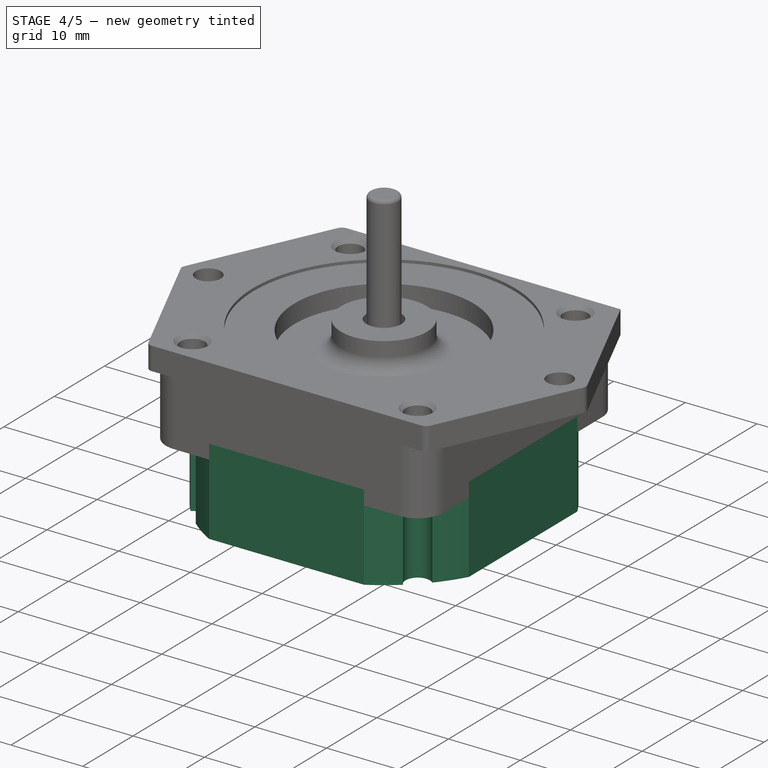
[diagram: stage 4 of 5 — iso view after this stage's code; geometry added in this stage tinted green]
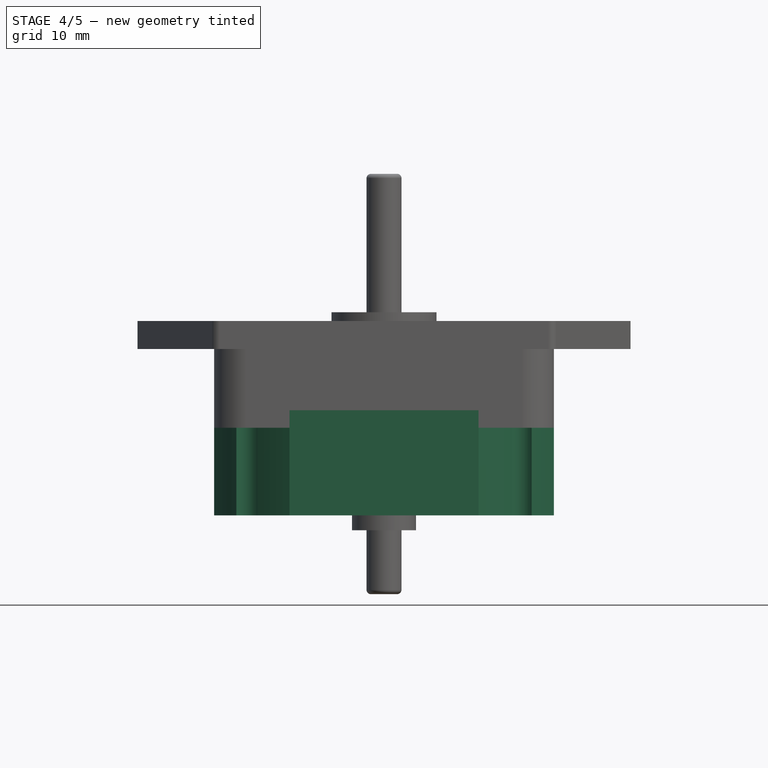
[diagram: stage 4 of 5 — front view after this stage's code; geometry added in this stage tinted green]
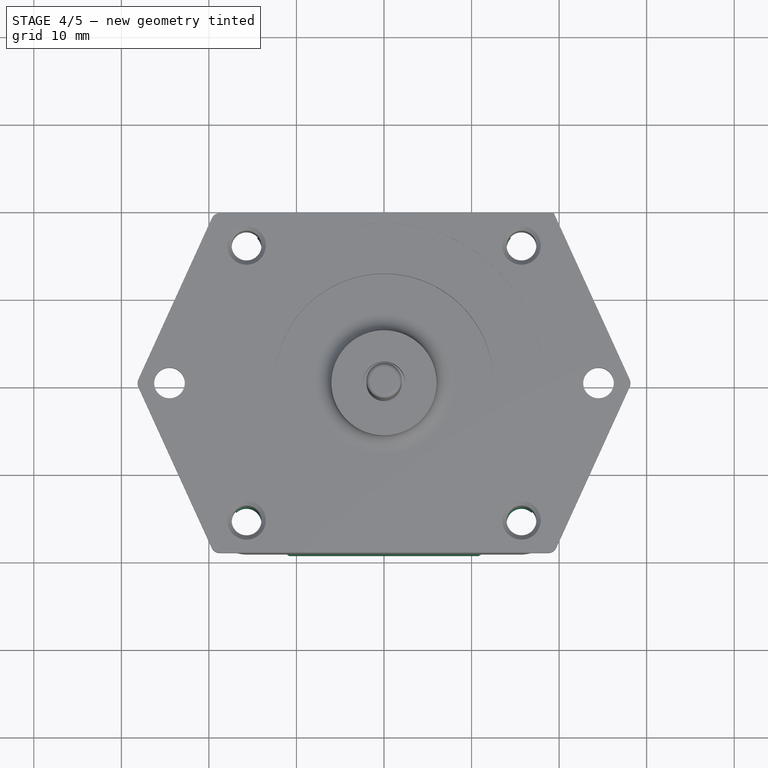
[diagram: stage 4 of 5 — top view after this stage's code; geometry added in this stage tinted green]
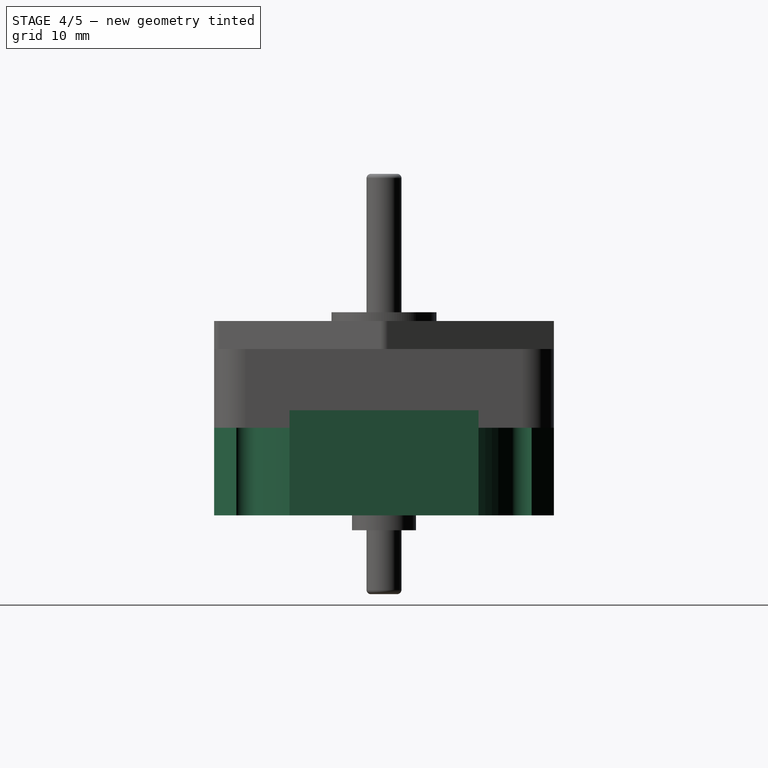
[diagram: stage 4 of 5 — right view after this stage's code; geometry added in this stage tinted green]
FEATURE [PartDesign::Body] Body  label="Bototm Al"
  AutoGroupSolids = false
  ExportMode = 0
  Group = -> [Sketch,Pad,Sketch001,Pocket,Sketch002,Pocket001,Sketch003,Pad001,Sketch005,Pocket002]
  Origin = -> Origin
  Tip = -> Pocket002
  TreeRank = 12
  _ExportChildren = -> [Pad,Pocket,Pocket001,Pad001,Pocket002]
  _GroupVersion = 1
FEATURE [Part::SubShapeBinder] Import  label="Import(Pocket002)"
  BindCopyOnChange = 0
  BindMode = 0
  ClaimChildren = false
  Context = -> Part [Body002.Import.]
  FillStyle = 0
  Fuse = false
  MakeFace = false
  PartialLoad = false
  Relative = true
  Support = -> [Body[Pocket002.]]
  TreeRank = 67
  _Version = 8
FEATURE [Sketcher::SketchObject] Sketch006
  AttachmentOffset = pos=(0,0,11) rot=(0,0,1;0rad)
  ExternalGeometry = -> [Import]
  FullyConstrained = true
  MapMode = 5
  Placement = pos=(0,0,11) rot=(0,0,1;0rad)
  Support = -> [XY_Plane002]
  TreeRank = 66
  sketch-geometry (25):
    g0: ArcOfCircle CenterX=0 CenterY=0 CenterZ=0 NormalX=0 NormalY=0 NormalZ=1 AngleXU=0 Radius=22.2032 StartAngle=2.07873 EndAngle=2.27961
    g1: LineSegment StartX=-19.4 StartY=-10.7991 StartZ=0 EndX=-19.4 EndY=10.7991 EndZ=0
    g2: LineSegment StartX=-10.7991 StartY=19.4 StartZ=0 EndX=10.7991 EndY=19.4 EndZ=0
    g3: LineSegment StartX=19.4 StartY=-10.7991 StartZ=0 EndX=19.4 EndY=10.7991 EndZ=0
    g4: LineSegment StartX=-10.7991 StartY=-19.4 StartZ=0 EndX=10.7991 EndY=-19.4 EndZ=0
    g5: ArcOfCircle CenterX=-15.7 CenterY=15.7 CenterZ=0 NormalX=0 NormalY=0 NormalZ=1 AngleXU=0 Radius=1.7 StartAngle=3.96528 EndAngle=7.03029
    g6: ArcOfCircle CenterX=15.7 CenterY=15.7 CenterZ=0 NormalX=0 NormalY=0 NormalZ=1 AngleXU=0 Radius=1.7 StartAngle=2.39449 EndAngle=5.45949
    g7: ArcOfCircle CenterX=15.7 CenterY=-15.7 CenterZ=0 NormalX=0 NormalY=0 NormalZ=1 AngleXU=0 Radius=1.7 StartAngle=0.82369 EndAngle=3.8887
    g8: ArcOfCircle CenterX=-15.7 CenterY=-15.7 CenterZ=0 NormalX=0 NormalY=0 NormalZ=1 AngleXU=0 Radius=1.7 StartAngle=5.53608 EndAngle=8.60109
    g9: ArcOfCircle CenterX=0 CenterY=0 CenterZ=0 NormalX=0 NormalY=0 NormalZ=1 AngleXU=0 Radius=22.2032 StartAngle=3.64953 EndAngle=3.85041
    g10: ArcOfCircle CenterX=0 CenterY=0 CenterZ=0 NormalX=0 NormalY=0 NormalZ=1 AngleXU=0 Radius=22.2032 StartAngle=5.22033 EndAngle=5.4212
    g11: ArcOfCircle CenterX=0 CenterY=0 CenterZ=0 NormalX=0 NormalY=0 NormalZ=1 AngleXU=0 Radius=22.2032 StartAngle=0.507937 EndAngle=0.708814
    g12: ArcOfCircle CenterX=0 CenterY=0 CenterZ=0 NormalX=0 NormalY=0 NormalZ=1 AngleXU=0 Radius=22.2032 StartAngle=0.861983 EndAngle=1.06286
    g13: ArcOfCircle CenterX=0 CenterY=0 CenterZ=0 NormalX=0 NormalY=0 NormalZ=1 AngleXU=0 Radius=22.2032 StartAngle=2.43278 EndAngle=2.63366
    g14: ArcOfCircle CenterX=0 CenterY=0 CenterZ=0 NormalX=0 NormalY=0 NormalZ=1 AngleXU=0 Radius=22.2032 StartAngle=4.00358 EndAngle=4.20445
    g15: ArcOfCircle CenterX=0 CenterY=0 CenterZ=0 NormalX=0 NormalY=0 NormalZ=1 AngleXU=0 Radius=22.2032 StartAngle=5.57437 EndAngle=5.77525
    g16: LineSegment StartX=18 StartY=-7.45584 StartZ=0 EndX=18 EndY=7.45584 EndZ=0
    g17: LineSegment StartX=18 StartY=7.45584 StartZ=0 EndX=7.45584 EndY=18 EndZ=0
    g18: LineSegment StartX=7.45584 StartY=18 StartZ=0 EndX=-7.45584 EndY=18 EndZ=0
    g19: LineSegment StartX=-7.45584 StartY=18 StartZ=0 EndX=-18 EndY=7.45584 EndZ=0
    g20: LineSegment StartX=-18 StartY=7.45584 StartZ=0 EndX=-18 EndY=-7.45584 EndZ=0
    g21: LineSegment StartX=-18 StartY=-7.45584 StartZ=0 EndX=-7.45584 EndY=-18 EndZ=0
    g22: LineSegment StartX=-7.45584 StartY=-18 StartZ=0 EndX=7.45584 EndY=-18 EndZ=0
    g23: LineSegment StartX=7.45584 StartY=-18 StartZ=0 EndX=18 EndY=-7.45584 EndZ=0
    g24: Circle [constr] CenterX=0 CenterY=0 CenterZ=0 NormalX=0 NormalY=0 NormalZ=1 AngleXU=0 Radius=19.4831
  constraints (71):
    c: Coincident(g0,g-3)
    c: PointOnObject(g-3,g0)
    c: Vertical(g1)
    c: Horizontal(g2)
    c: PointOnObject(g3,g0)
    c: PointOnObject(g3,g0)
    c: Vertical(g3)
    c: PointOnObject(g4,g0)
    c: PointOnObject(g4,g0)
    c: Horizontal(g4)
    c: Horizontal(g-4,g2)
    c: Vertical(g3,g-5)
    c: Horizontal(g4,g-6)
    c: Coincident(g5,g-8)
    c: Coincident(g6,g-11)
    c: Coincident(g7,g-10)
    c: Coincident(g8,g-9)
    c: Vertical(g1,g-7)
    c: Coincident(g12,g2)
    c: Coincident(g0,g2)
    c: Equal(g0,g9)
    c: Coincident(g13,g1)
    c: Coincident(g9,g1)
    c: Coincident(g0,g9)
    c: Equal(g9,g10)
    c: PointOnObject(g14,g4)
    c: PointOnObject(g10,g4)
    c: Coincident(g9,g10)
    c: Equal(g10,g11)
    c: PointOnObject(g15,g3)
    c: PointOnObject(g11,g3)
    c: Coincident(g10,g11)
    c: Equal(g11,g12)
    c: PointOnObject(g12,g6)
    c: Coincident(g11,g12)
    c: Equal(g0,g13)
    c: PointOnObject(g0,g5)
    c: Coincident(g0,g13)
    c: Equal(g9,g14)
    c: PointOnObject(g14,g8)
    c: Coincident(g9,g14)
    c: Equal(g10,g15)
    c: PointOnObject(g10,g7)
    c: Coincident(g10,g15)
    c: Coincident(g8,g9)
    c: Coincident(g8,g-9)
    c: Coincident(g7,g-10)
    c: Coincident(g6,g-11)
    c: Coincident(g5,g-8)
    c: Coincident(g5,g13)
    c: Coincident(g6,g11)
    c: Coincident(g7,g15)
    c: Coincident(g16,g17)
    c: Coincident(g17,g18)
    c: Coincident(g18,g19)
    c: Coincident(g19,g20)
    c: Coincident(g20,g21)
    c: Coincident(g21,g22)
    c: Coincident(g22,g23)
    c: Coincident(g23,g16)
    c: Equal(g16, g17-g23) x7
    c: PointOnObject(g16,g24)
    c: PointOnObject(g17,g24)
    c: PointOnObject(g18,g24)
    c: PointOnObject(g19,g24)
    c: PointOnObject(g20,g24)
    c: PointOnObject(g21,g24)
    c: PointOnObject(g22,g24)
    c: PointOnObject(g23,g24)
    c: Coincident(g24,g0)
    c: Coincident(g17,g-12)
FEATURE [PartDesign::Pad] Pad003
  AddSubType = 0
  AlongSketchNormal = false
  CheckUpToFaceLimits = true
  ClaimChildren = false
  Direction = (0,0,1)
  Fit = 0
  FitJoin = 0
  InnerFit = 0
  InnerFitJoin = 0
  InnerTaperAngle = 0
  InnerTaperAngleRev = 0
  Length = 12
  Length2 = 100
  Linearize = true
  NewSolid = false
  Profile = -> Sketch006
  Suppress = false
  TreeRank = 68
  Type = 0
  _ProfileBasedVersion = 1
FEATURE [Part::SubShapeBinder] Import002  label="Import002(Pad006)"
  BindCopyOnChange = 0
  BindMode = 0
  ClaimChildren = false
  Context = -> Body004 [Import002.]
  FillStyle = 0
  Fuse = false
  MakeFace = false
  PartialLoad = false
  Relative = true
  Support = -> [Body003[Pad006.]]
  TreeRank = 96
  _Version = 8
FEATURE [Sketcher::SketchObject] Sketch012
  FullyConstrained = true
  MapMode = 5
  Placement = pos=(0,0,28.5) rot=(1,0,0;3.14159rad)
  Support = -> [Import002]
  TreeRank = 95
  sketch-geometry (2):
    g0: Circle CenterX=0 CenterY=0 CenterZ=0 NormalX=0 NormalY=0 NormalZ=1 AngleXU=0 Radius=2
    g1: Circle CenterX=0 CenterY=0 CenterZ=0 NormalX=0 NormalY=0 NormalZ=1 AngleXU=0 Radius=4
  constraints (4):
    c: Coincident(g0,g-1)
    c: Coincident(g1,g0)
    c: Diameter(g0) = 4
    c: Diameter(g1) = 8
FEATURE [PartDesign::Pad] Pad007
  AddSubType = 0
  AlongSketchNormal = false
  CheckUpToFaceLimits = true
  ClaimChildren = false
  Direction = (0,0,-1)
  Fit = 0
  FitJoin = 0
  InnerFit = 0
  InnerFitJoin = 0
  InnerTaperAngle = 0
  InnerTaperAngleRev = 0
  Length = 3
  Length2 = 100
  Linearize = true
  NewSolid = false
  Profile = -> Sketch012
  Suppress = false
  TreeRank = 97
  Type = 0
  _ProfileBasedVersion = 1
FEATURE [PartDesign::Body] Body004  label="Bearing2"
  AutoGroupSolids = false
  ExportMode = 0
  Group = -> [Sketch012,Import002,Pad007]
  Origin = -> Origin005
  Tip = -> Pad007
  TreeRank = 94
  _ExportChildren = -> [Import002,Pad007]
  _GroupVersion = 1
FEATURE [Sketcher::SketchObject] Sketch013
  ExternalGeometry = -> [Pad003]
  FullyConstrained = false
  MapMode = 5
  Placement = pos=(0,0,11) rot=(1,0,0;3.14159rad)
  Support = -> [Pad003]
  TreeRank = 98
  sketch-geometry (11):
    g0: LineSegment StartX=0.5 StartY=15.4808 StartZ=0 EndX=0.5 EndY=18 EndZ=0
    g1: LineSegment StartX=0.5 StartY=18 StartZ=0 EndX=-0.5 EndY=18 EndZ=0
    g2: LineSegment StartX=-0.5 StartY=18 StartZ=0 EndX=-0.5 EndY=15.4808 EndZ=0
    g3: ArcOfCircle CenterX=0 CenterY=0 CenterZ=0 NormalX=0 NormalY=0 NormalZ=1 AngleXU=0 Radius=14.4889 StartAngle=1.309 EndAngle=1.8326
    g4: ArcOfCircle CenterX=0 CenterY=0 CenterZ=0 NormalX=0 NormalY=0 NormalZ=1 AngleXU=0 Radius=15.4889 StartAngle=1.60308 EndAngle=1.8326
    g5: ArcOfCircle CenterX=0 CenterY=0 CenterZ=0 NormalX=0 NormalY=0 NormalZ=1 AngleXU=0 Radius=15.4889 StartAngle=1.309 EndAngle=1.53851
    g6: LineSegment [constr] StartX=0 StartY=0 StartZ=0 EndX=-4.13856 EndY=15.4453 EndZ=0
    g7: LineSegment [constr] StartX=0 StartY=0 StartZ=0 EndX=4.23345 EndY=15.7995 EndZ=0
    g8: GeomPoint [constr] X=0 Y=18 Z=0
    g9: LineSegment StartX=3.75 StartY=13.9952 StartZ=0 EndX=4.00882 EndY=14.9611 EndZ=0
    g10: LineSegment StartX=-3.75 StartY=13.9952 StartZ=0 EndX=-4.00882 EndY=14.9611 EndZ=0
  constraints (29):
    c: PointOnObject(g0,g-3)
    c: Vertical(g0)
    c: Coincident(g0,g1)
    c: PointOnObject(g1,g-3)
    c: Coincident(g1,g2)
    c: Coincident(g3,g-1)
    c: Coincident(g4,g3)
    c: Coincident(g4,g2)
    c: Coincident(g5,g3)
    c: Coincident(g5,g0)
    c: Coincident(g6,g3)
    c: Coincident(g7,g3)
    c: Angle(g7) = 1.309
    c: Angle(g6) = 1.8326
    c: PointOnObject(g5,g7)
    c: PointOnObject(g3,g7)
    c: PointOnObject(g3,g6)
    c: PointOnObject(g4,g6)
    c: Equal(g0,g2)
    c: Vertical(g2)
    c: Symmetric(g1,g0,g8)
    c: PointOnObject(g8,g-2)
    c: Coincident(g9,g3)
    c: Coincident(g9,g5)
    c: Coincident(g10,g3)
    c: Coincident(g10,g4)
    c: DistanceX(g3,g3) = 7.5
    c: DistanceX(g1,g1) = 1
    c: Distance(g9) = 1
FEATURE [PartDesign::Pad] Pad008
  AddSubType = 0
  AlongSketchNormal = false
  BaseFeature = -> Pad003
  CheckUpToFaceLimits = true
  ClaimChildren = false
  Direction = (0,0,-1)
  Fit = 0
  FitJoin = 0
  InnerFit = 0
  InnerFitJoin = 0
  InnerTaperAngle = 0
  InnerTaperAngleRev = 0
  Length = 12
  Length2 = 100
  Linearize = true
  NewSolid = false
  Profile = -> Sketch013
  Reversed = true
  Suppress = false
  TreeRank = 99
  Type = 0
  _ProfileBasedVersion = 1
FEATURE [PartDesign::PolarPattern] PolarPattern
  AddSubType = 0
  Angle = 360
  Axis = -> Sketch013 [N_Axis]
  BaseFeature = -> Pad008
  CopyShape = false
  NewSolid = false
  Occurrences = 8
  OriginalSubs = -> [Pad008]
  Originals = -> [Pad008]
  ParallelTransform = true
  SubTransform = true
  Suppress = false
  TreeRank = 100
  _Version = 3
FEATURE [PartDesign::Fillet] Fillet
  AddSubType = 0
  Base = -> Pad011 [Edge3,Edge2]
  BaseFeature = -> Pad011
  NewSolid = false
  Radius = 0.5
  SupportTransform = false
  Suppress = false
  TreeRank = 124
  expr: Radius = 0.5
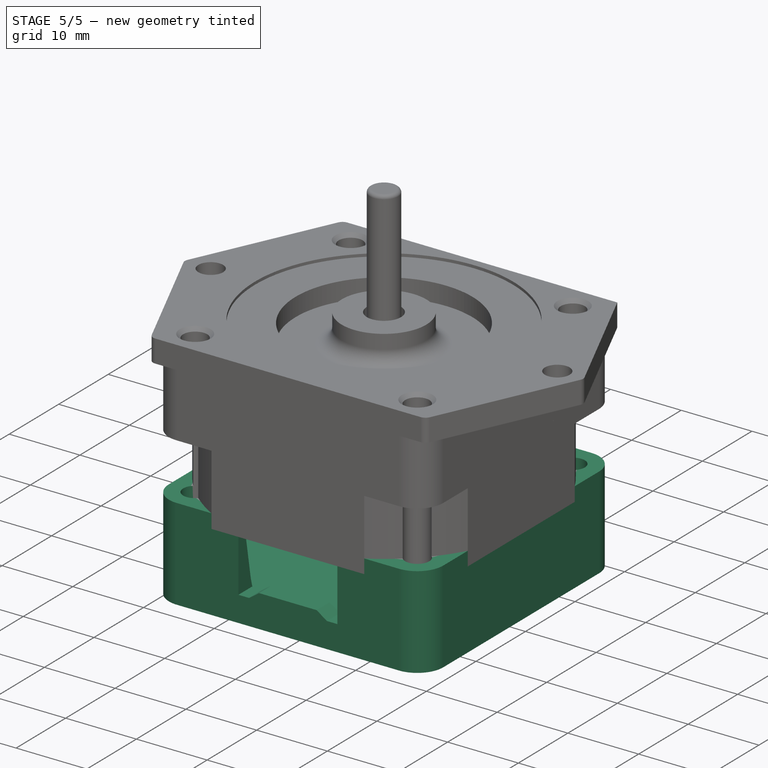
[diagram: stage 5 of 5 — iso view after this stage's code; geometry added in this stage tinted green]
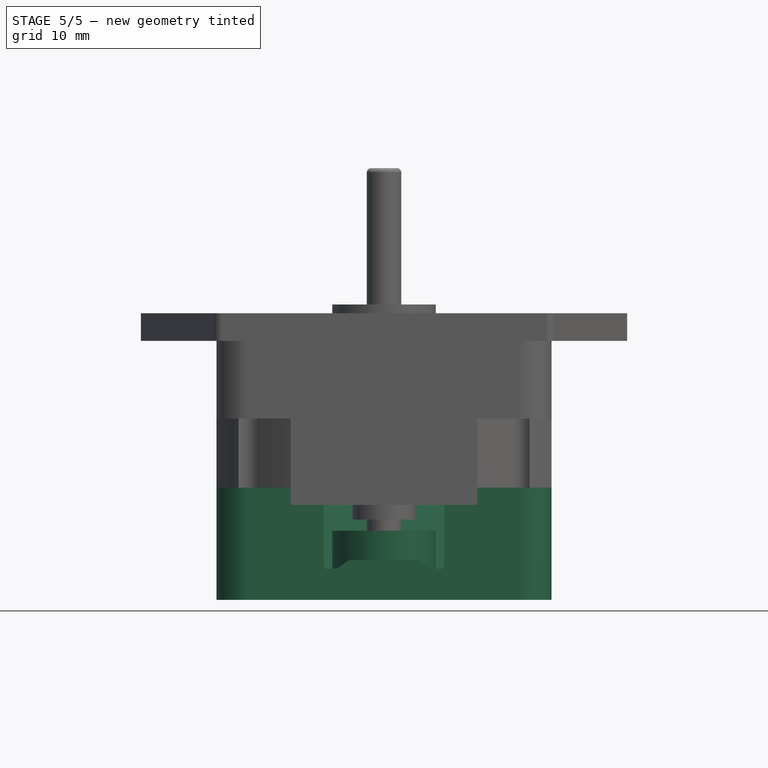
[diagram: stage 5 of 5 — front view after this stage's code; geometry added in this stage tinted green]
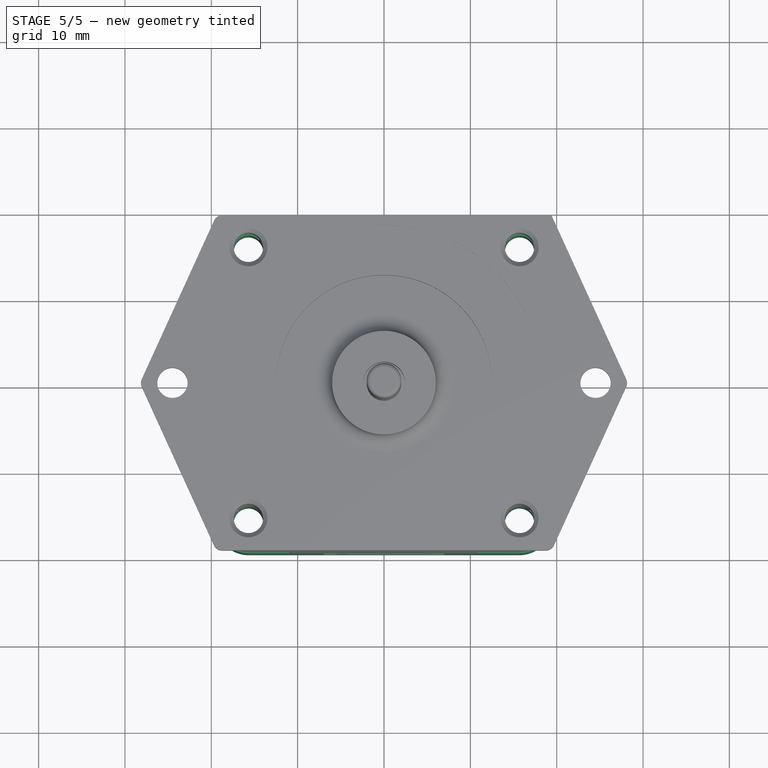
[diagram: stage 5 of 5 — top view after this stage's code; geometry added in this stage tinted green]
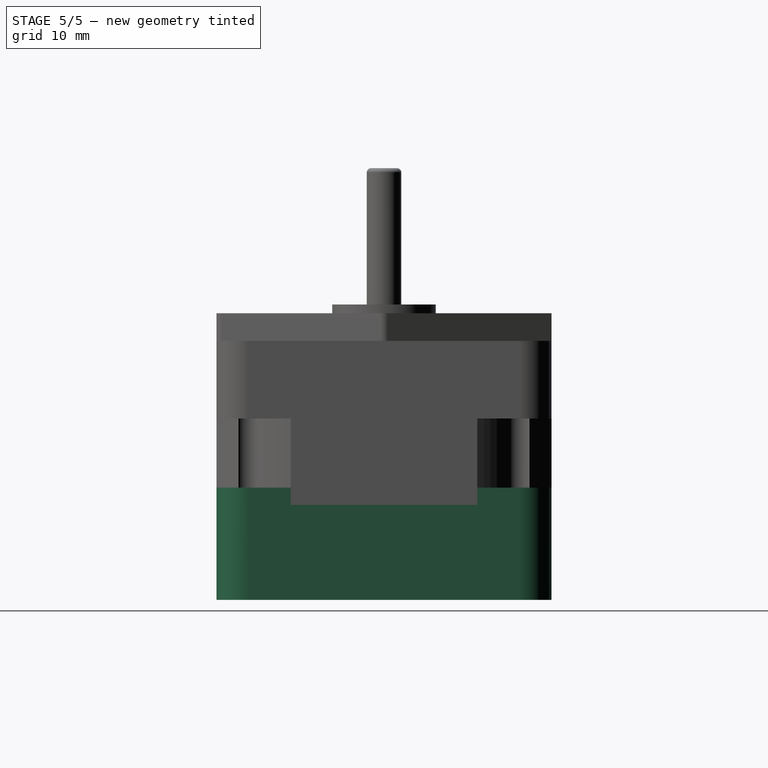
[diagram: stage 5 of 5 — right view after this stage's code; geometry added in this stage tinted green]
FEATURE [Sketcher::SketchObject] Sketch
  FullyConstrained = true
  MapMode = 5
  Support = -> [XY_Plane]
  TreeRank = 13
  sketch-geometry (15):
    g0: ArcOfCircle CenterX=-15.7 CenterY=15.7 CenterZ=0 NormalX=0 NormalY=0 NormalZ=1 AngleXU=0 Radius=3.7 StartAngle=1.5708 EndAngle=3.14159
    g1: LineSegment StartX=-15.7 StartY=19.4 StartZ=0 EndX=15.7 EndY=19.4 EndZ=0
    g2: ArcOfCircle CenterX=15.7 CenterY=15.7 CenterZ=0 NormalX=0 NormalY=0 NormalZ=1 AngleXU=0 Radius=3.7 StartAngle=3e-16 EndAngle=1.5708
    g3: LineSegment StartX=19.4 StartY=15.7 StartZ=0 EndX=19.4 EndY=-15.7 EndZ=0
    g4: ArcOfCircle CenterX=15.7 CenterY=-15.7 CenterZ=0 NormalX=0 NormalY=0 NormalZ=1 AngleXU=0 Radius=3.7 StartAngle=4.71239 EndAngle=6.28319
    g5: LineSegment StartX=15.7 StartY=-19.4 StartZ=0 EndX=-15.7 EndY=-19.4 EndZ=0
    g6: ArcOfCircle CenterX=-15.7 CenterY=-15.7 CenterZ=0 NormalX=0 NormalY=0 NormalZ=1 AngleXU=0 Radius=3.7 StartAngle=3.14159 EndAngle=4.71239
    g7: LineSegment StartX=-19.4 StartY=-15.7 StartZ=0 EndX=-19.4 EndY=15.7 EndZ=0
    g8: GeomPoint [constr] X=-19.4 Y=19.4 Z=0
    g9: GeomPoint [constr] X=19.4 Y=-19.4 Z=0
    g10: Circle CenterX=-15.7 CenterY=15.7 CenterZ=0 NormalX=0 NormalY=0 NormalZ=1 AngleXU=0 Radius=1.7
    g11: Circle CenterX=-15.7 CenterY=-15.7 CenterZ=0 NormalX=0 NormalY=0 NormalZ=1 AngleXU=0 Radius=1.7
    g12: Circle CenterX=15.7 CenterY=-15.7 CenterZ=0 NormalX=0 NormalY=0 NormalZ=1 AngleXU=0 Radius=1.7
    g13: Circle CenterX=15.7 CenterY=15.7 CenterZ=0 NormalX=0 NormalY=0 NormalZ=1 AngleXU=0 Radius=1.7
    g14: Circle CenterX=0 CenterY=0 CenterZ=0 NormalX=0 NormalY=0 NormalZ=1 AngleXU=0 Radius=2.425
  constraints (33):
    c: Tangent(g0,g1) = 1.5708
    c: Tangent(g1,g2) = 1.5708
    c: Tangent(g2,g3) = 1.5708
    c: Tangent(g3,g4) = 1.5708
    c: Tangent(g4,g5) = 1.5708
    c: Tangent(g5,g6) = 1.5708
    c: Tangent(g6,g7) = 1.5708
    c: Tangent(g7,g0) = 1.5708
    c: Horizontal(g1)
    c: Horizontal(g5)
    c: Vertical(g3)
    c: Vertical(g7)
    c: Equal(g0,g2)
    c: Equal(g2,g4)
    c: Equal(g4,g6)
    c: PointOnObject(g8,g1)
    c: PointOnObject(g8,g7)
    c: PointOnObject(g9,g3)
    c: PointOnObject(g9,g5)
    c: Symmetric(g6,g2,g-1)
    c: Radius(g2) = 3.7
    c: Equal(g1,g3)
    c: DistanceX(g1,g1) = 31.4
    c: Coincident(g10,g0)
    c: Coincident(g11,g6)
    c: Coincident(g12,g4)
    c: Coincident(g13,g2)
    c: Equal(g13,g10)
    c: Equal(g10,g11)
    c: Equal(g11,g12)
    c: Diameter(g10) = 3.4
    c: Coincident(g14,g-1)
    c: Diameter(g14) = 4.85
FEATURE [PartDesign::Pad] Pad
  AddSubType = 0
  AlongSketchNormal = false
  CheckUpToFaceLimits = true
  ClaimChildren = false
  Direction = (0,0,1)
  Fit = 0
  FitJoin = 0
  InnerFit = 0
  InnerFitJoin = 0
  InnerTaperAngle = 0
  InnerTaperAngleRev = 0
  Length = 13
  Length2 = 100
  Linearize = true
  NewSolid = false
  Profile = -> Sketch
  Suppress = false
  TreeRank = 19
  Type = 0
  _ProfileBasedVersion = 1
FEATURE [Sketcher::SketchObject] Sketch001
  ExternalGeometry = -> [Pad]
  FullyConstrained = true
  MapMode = 5
  Placement = pos=(0,0,13) rot=(0,0,1;0rad)
  Support = -> [Pad]
  TreeRank = 20
  sketch-geometry (1):
    g0: Circle CenterX=0 CenterY=0 CenterZ=0 NormalX=0 NormalY=0 NormalZ=1 AngleXU=0 Radius=22.2032
  constraints (2):
    c: Coincident(g0,g-1)
    c: PointOnObject(g-3,g0)
FEATURE [PartDesign::Pocket] Pocket
  AddSubType = 1
  BaseFeature = -> Pad
  CheckUpToFaceLimits = true
  ClaimChildren = false
  Fit = 0
  FitJoin = 0
  InnerFit = 0
  InnerFitJoin = 0
  InnerTaperAngle = 0
  InnerTaperAngleRev = 0
  Length = 2
  Length2 = 100
  Linearize = true
  NewSolid = false
  Profile = -> Sketch001
  Suppress = false
  TreeRank = 21
  Type = 0
  _ProfileBasedVersion = 1
  _Version = 1
FEATURE [Sketcher::SketchObject] Sketch002
  FullyConstrained = true
  MapMode = 5
  Placement = pos=(0,0,11) rot=(0,0,1;0rad)
  Support = -> [Pocket]
  TreeRank = 22
  sketch-geometry (9):
    g0: LineSegment StartX=18 StartY=-7.45584 StartZ=0 EndX=18 EndY=7.45584 EndZ=0
    g1: LineSegment StartX=18 StartY=7.45584 StartZ=0 EndX=7.45584 EndY=18 EndZ=0
    g2: LineSegment StartX=7.45584 StartY=18 StartZ=0 EndX=-7.45584 EndY=18 EndZ=0
    g3: LineSegment StartX=-7.45584 StartY=18 StartZ=0 EndX=-18 EndY=7.45584 EndZ=0
    g4: LineSegment StartX=-18 StartY=7.45584 StartZ=0 EndX=-18 EndY=-7.45584 EndZ=0
    g5: LineSegment StartX=-18 StartY=-7.45584 StartZ=0 EndX=-7.45584 EndY=-18 EndZ=0
    g6: LineSegment StartX=-7.45584 StartY=-18 StartZ=0 EndX=7.45584 EndY=-18 EndZ=0
    g7: LineSegment StartX=7.45584 StartY=-18 StartZ=0 EndX=18 EndY=-7.45584 EndZ=0
    g8: Circle [constr] CenterX=0 CenterY=0 CenterZ=0 NormalX=0 NormalY=0 NormalZ=1 AngleXU=0 Radius=19.4831
  constraints (20):
    c: Coincident(g0,g1)
    c: Coincident(g1,g2)
    c: Coincident(g2,g3)
    c: Coincident(g3,g4)
    c: Coincident(g4,g5)
    c: Coincident(g5,g6)
    c: Coincident(g6,g7)
    c: Coincident(g7,g0)
    c: Equal(g0, g1-g7) x7
    c: PointOnObject(g0,g8)
    c: PointOnObject(g1,g8)
    c: PointOnObject(g2,g8)
    c: PointOnObject(g3,g8)
    c: PointOnObject(g4,g8)
    c: PointOnObject(g5,g8)
    c: PointOnObject(g6,g8)
    c: PointOnObject(g7,g8)
    c: Coincident(g8,g-1)
    c: Horizontal(g2)
    c: DistanceX(g3,g0) = 36
FEATURE [PartDesign::Pocket] Pocket001
  AddSubType = 1
  BaseFeature = -> Pocket
  CheckUpToFaceLimits = true
  ClaimChildren = false
  Fit = 0
  FitJoin = 0
  InnerFit = 0
  InnerFitJoin = 0
  InnerTaperAngle = 0
  InnerTaperAngleRev = 0
  Length = 8
  Length2 = 100
  Linearize = true
  NewSolid = false
  Profile = -> Sketch002
  Suppress = false
  TaperAngle = -10
  TreeRank = 23
  Type = 0
  _ProfileBasedVersion = 1
  _Version = 1
FEATURE [Sketcher::SketchObject] Sketch003
  FullyConstrained = true
  MapMode = 5
  Placement = pos=(0,0,3) rot=(0,0,1;0rad)
  Support = -> [Pocket001]
  TreeRank = 24
  sketch-geometry (2):
    g0: Circle CenterX=0 CenterY=0 CenterZ=0 NormalX=0 NormalY=0 NormalZ=1 AngleXU=0 Radius=4
    g1: Circle CenterX=0 CenterY=0 CenterZ=0 NormalX=0 NormalY=0 NormalZ=1 AngleXU=0 Radius=6
  constraints (4):
    c: Coincident(g0,g-1)
    c: Coincident(g1,g0)
    c: Diameter(g0) = 8
    c: Diameter(g1) = 12
FEATURE [PartDesign::Pad] Pad001
  AddSubType = 0
  AlongSketchNormal = false
  BaseFeature = -> Pocket001
  CheckUpToFaceLimits = true
  ClaimChildren = false
  Direction = (0,0,1)
  Fit = 0
  FitJoin = 0
  InnerFit = 0
  InnerFitJoin = 0
  InnerTaperAngle = 0
  InnerTaperAngleRev = 0
  Length = 5
  Length2 = 100
  Linearize = true
  NewSolid = false
  Profile = -> Sketch003
  Suppress = false
  TreeRank = 25
  Type = 0
  _ProfileBasedVersion = 1
FEATURE [Sketcher::SketchObject] Sketch004
  AttachmentOffset = pos=(0,0,3) rot=(0,0,1;0rad)
  FullyConstrained = true
  MapMode = 5
  Placement = pos=(0,0,3) rot=(0,0,1;0rad)
  Support = -> [XY_Plane001]
  TreeRank = 38
  sketch-geometry (2):
    g0: Circle CenterX=0 CenterY=0 CenterZ=0 NormalX=0 NormalY=0 NormalZ=1 AngleXU=0 Radius=2
    g1: Circle CenterX=0 CenterY=0 CenterZ=0 NormalX=0 NormalY=0 NormalZ=1 AngleXU=0 Radius=4
  constraints (4):
    c: Coincident(g0,g-1)
    c: Coincident(g1,g0)
    c: Diameter(g0) = 4
    c: Diameter(g1) = 8
FEATURE [PartDesign::Pad] Pad002
  AddSubType = 0
  AlongSketchNormal = false
  CheckUpToFaceLimits = true
  ClaimChildren = false
  Direction = (0,0,1)
  Fit = 0
  FitJoin = 0
  InnerFit = 0
  InnerFitJoin = 0
  InnerTaperAngle = 0
  InnerTaperAngleRev = 0
  Length = 5
  Length2 = 100
  Linearize = true
  NewSolid = false
  Profile = -> Sketch004
  Suppress = false
  TreeRank = 39
  Type = 0
  _ProfileBasedVersion = 1
FEATURE [PartDesign::Body] Body001  label="Bearing"
  AutoGroupSolids = false
  ExportMode = 0
  Group = -> [Sketch004,Pad002]
  Origin = -> Origin002
  Tip = -> Pad002
  TreeRank = 37
  _ExportChildren = -> [Pad002]
  _GroupVersion = 1
FEATURE [Sketcher::SketchObject] Sketch005
  FullyConstrained = true
  MapMode = 5
  Placement = pos=(0,-19.4,0) rot=(1,0,0;1.5708rad)
  Support = -> [Pad001]
  TreeRank = 40
  sketch-geometry (9):
    g0: LineSegment StartX=-7 StartY=3.6 StartZ=0 EndX=-7 EndY=11.6 EndZ=0
    g1: LineSegment StartX=-7 StartY=11.6 StartZ=0 EndX=7 EndY=11.6 EndZ=0
    g2: LineSegment StartX=7 StartY=11.6 StartZ=0 EndX=7 EndY=3.6 EndZ=0
    g3: GeomPoint [constr] X=0 Y=7.6 Z=0
    g4: LineSegment StartX=7 StartY=3.6 StartZ=0 EndX=5.5 EndY=3.6 EndZ=0
    g5: LineSegment StartX=5.5 StartY=3.6 StartZ=0 EndX=4.07185 EndY=4.6 EndZ=0
    g6: LineSegment StartX=4.07185 StartY=4.6 StartZ=0 EndX=-4.07185 EndY=4.6 EndZ=0
    g7: LineSegment StartX=-4.07185 StartY=4.6 StartZ=0 EndX=-5.5 EndY=3.6 EndZ=0
    g8: LineSegment StartX=-5.5 StartY=3.6 StartZ=0 EndX=-7 EndY=3.6 EndZ=0
  constraints (25):
    c: Coincident(g0,g1)
    c: Coincident(g1,g2)
    c: Horizontal(g1)
    c: Vertical(g0)
    c: Vertical(g2)
    c: Symmetric(g1,g0,g3)
    c: PointOnObject(g3,g-2)
    c: DistanceY(g2) = 3.6
    c: DistanceX(g1,g1) = 14
    c: DistanceY(g2,g2) = 8
    c: Coincident(g2,g4)
    c: Horizontal(g4)
    c: Coincident(g4,g5)
    c: Coincident(g5,g6)
    c: Horizontal(g6)
    c: Coincident(g6,g7)
    c: Coincident(g7,g8)
    c: Coincident(g8,g0)
    c: Horizontal(g8)
    c: Equal(g4,g8)
    c: Equal(g5,g7)
    c: DistanceX(g8,g8) = 1.5
    c: DistanceY(g4,g5) = 1
    c: Horizontal(g7,g4)
    c: Angle(g7) = -2.53073
FEATURE [PartDesign::Pocket] Pocket002
  AddSubType = 1
  BaseFeature = -> Pad001
  CheckUpToFaceLimits = true
  ClaimChildren = false
  Fit = 0
  FitJoin = 0
  InnerFit = 0
  InnerFitJoin = 0
  InnerTaperAngle = 0
  InnerTaperAngleRev = 0
  Length = 5
  Length2 = 100
  Linearize = true
  NewSolid = false
  Profile = -> Sketch005
  Suppress = false
  TreeRank = 41
  Type = 2
  _ProfileBasedVersion = 1
  _Version = 1
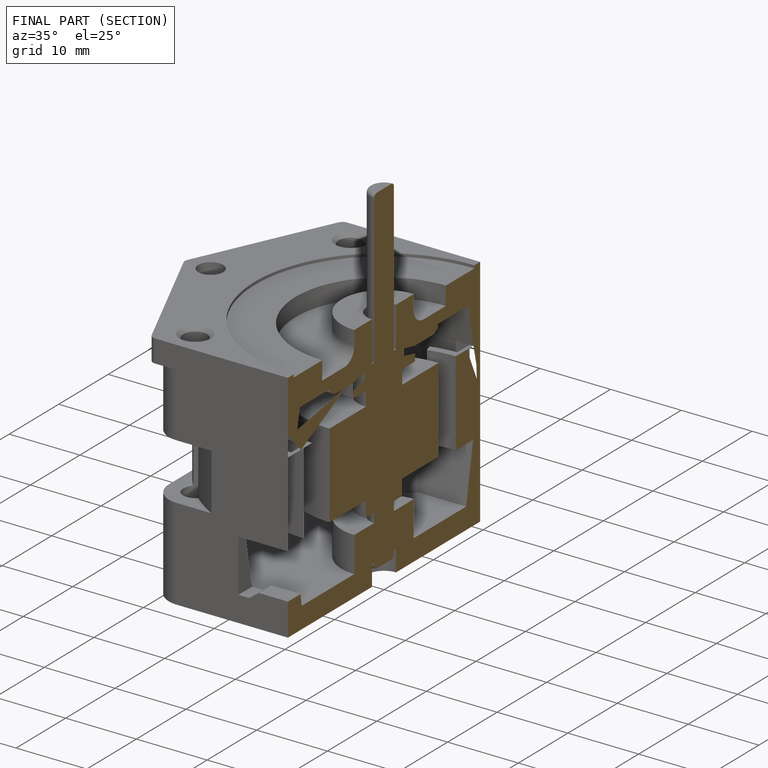
[diagram: finished part — half-section view (interior)]
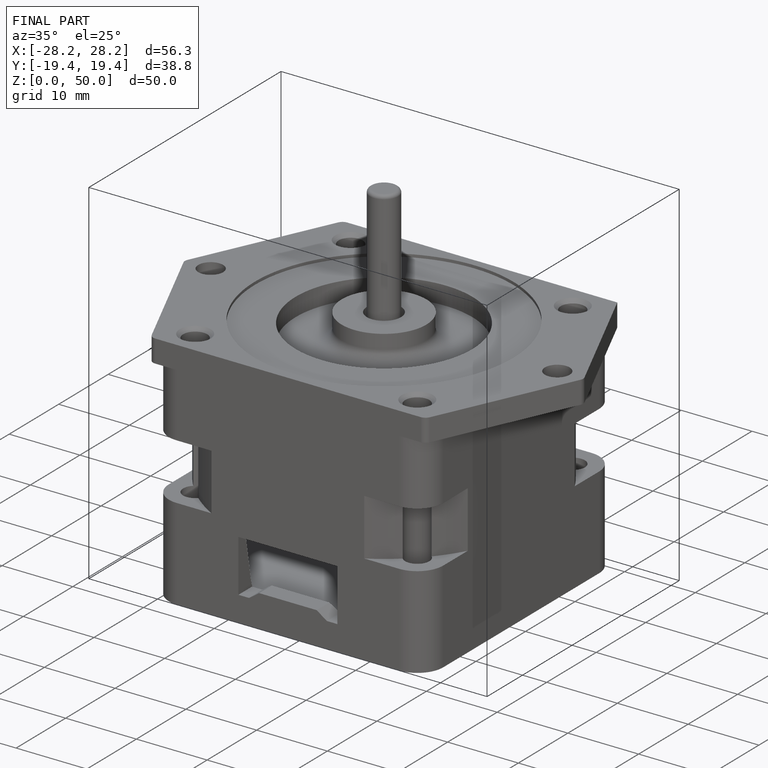
[diagram: finished part — iso view with bounding-box wireframe]
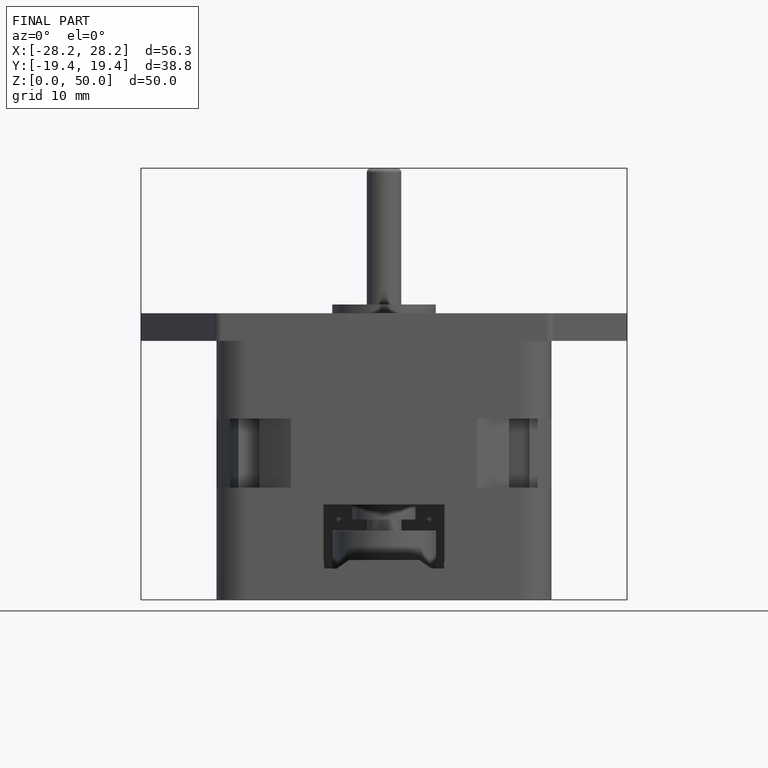
[diagram: finished part — front view with bounding-box wireframe]
